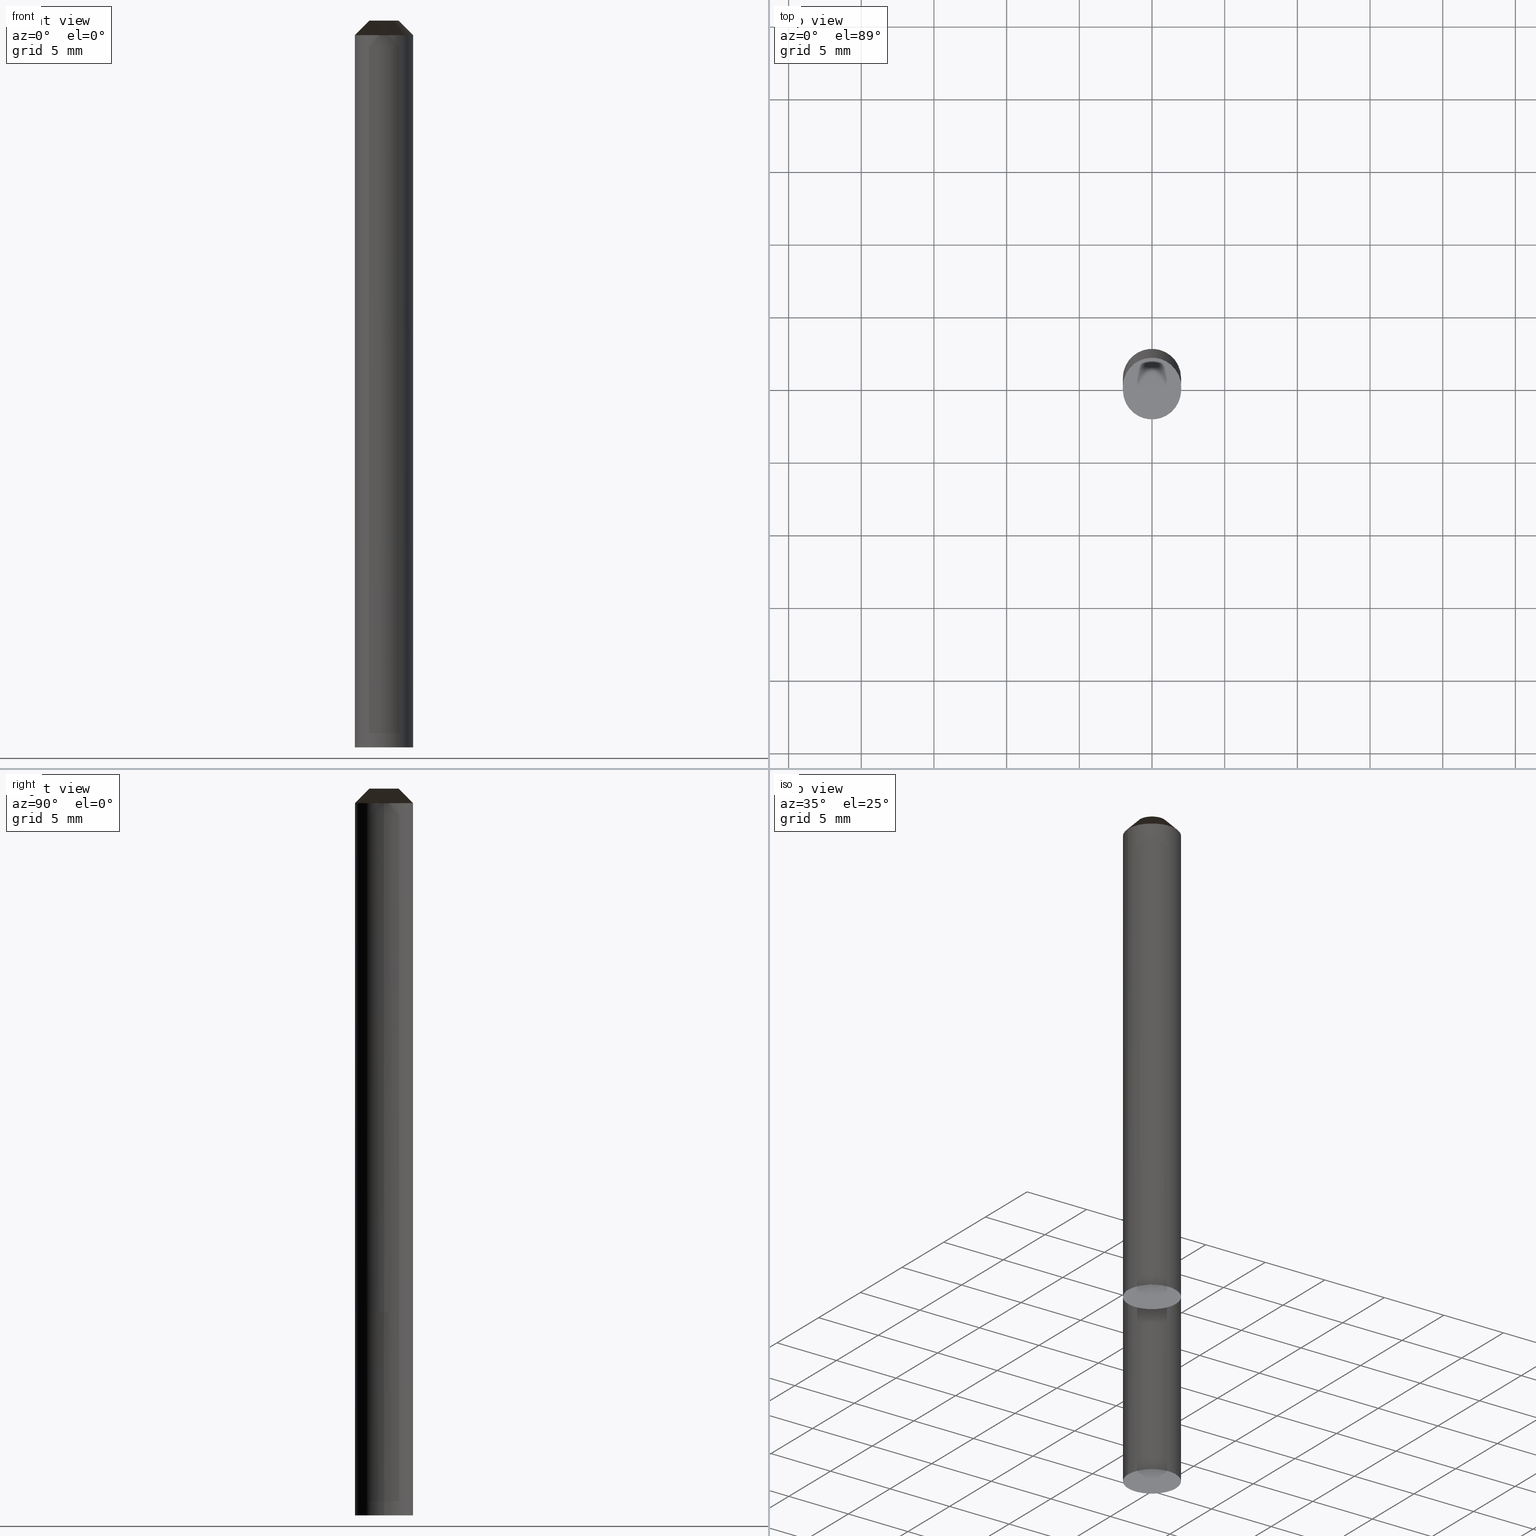
[diagram: canonical four-view strip — front | top / right | iso, engineering-drawing reading convention]
A machine part, canonical four-view strip (front | top / right | iso — engineering-drawing reading convention). The complete STEP part file that produces these views, byte-faithful:
ISO-10303-21;
HEADER;
/* Generated by ISBE GmbH (www.isbe.de) */
/* OPTION: using custom schema-name function */

FILE_DESCRIPTION(
/* description */ (''),
/* implementation_level */ '2;1');

FILE_NAME(
/*name*/ '1110400   Issue 1',
/*time_stamp*/'2021-8-27T14:29:30',
/*author*/ ('ISBE GmbH'),
/*organization*/ ('ISBE GmbH'),
/*preprocessor_version*/ 'STEP IO v1.0',
/*originating_system*/ '',
/*authorisation*/ '');

FILE_SCHEMA (('AUTOMOTIVE_DESIGN'));
ENDSEC;

DATA;
#10=SHAPE_DEFINITION_REPRESENTATION(#11,#57);
#11=PRODUCT_DEFINITION_SHAPE('Document','',#13);
#12=PRODUCT_DEFINITION_CONTEXT('3D Mechanical Parts',#17,'design');
#13=PRODUCT_DEFINITION('A','First version',#14,#12);
#14=PRODUCT_DEFINITION_FORMATION_WITH_SPECIFIED_SOURCE('A','First version',#19,.MADE.);
#15=PRODUCT_RELATED_PRODUCT_CATEGORY('tool','tool',(#19));
#16=APPLICATION_PROTOCOL_DEFINITION('Draft International Standard', 'automotive_design',1999,#17);
#17=APPLICATION_CONTEXT('data for automotive mechanical design processes');
#18=PRODUCT_CONTEXT('3D Mechanical Parts',#17,'mechanical');
#19=PRODUCT('Document','Document','ISBE converted to STEP',(#18));
#20=(
LENGTH_UNIT()
NAMED_UNIT(*)
SI_UNIT(.MILLI.,.METRE.)
);
#21=(
NAMED_UNIT(*)
PLANE_ANGLE_UNIT()
SI_UNIT($,.RADIAN.)
);
#22=DIMENSIONAL_EXPONENTS(0.,0.,0.,0.,0.,0.,0.);
#23=PLANE_ANGLE_MEASURE_WITH_UNIT(PLANE_ANGLE_MEASURE(0.01745329252),#21);
#24=(
CONVERSION_BASED_UNIT('DEGREES',#23)
NAMED_UNIT(#22)
PLANE_ANGLE_UNIT()
);
#25=(
NAMED_UNIT(*)
SI_UNIT($,.STERADIAN.)
SOLID_ANGLE_UNIT()
);
#26=UNCERTAINTY_MEASURE_WITH_UNIT(LENGTH_MEASURE(0.001),#20, 'DISTANCE_ACCURACY_VALUE', 'Maximum model space distance between geometric entities at asserted connectivities');
#27=(
GEOMETRIC_REPRESENTATION_CONTEXT(3)
GLOBAL_UNCERTAINTY_ASSIGNED_CONTEXT((#26))
GLOBAL_UNIT_ASSIGNED_CONTEXT((#25,#24,#20))
REPRESENTATION_CONTEXT('ID1','3D')
);
#28=CARTESIAN_POINT('',(0.0,0.0,0.0));
#29=DIRECTION('',(1.0,0.0,0.0));
#30=DIRECTION('',(0.0,0.0,1.0));
#31=AXIS2_PLACEMENT_3D('',#28,#30,#29);
#32=CARTESIAN_POINT('',(0.0,0.0,0.0));
#33=DIRECTION('',(1.0,0.0,0.0));
#34=DIRECTION('',(0.0,0.0,1.0));
#35=AXIS2_PLACEMENT_3D('',#32,#34,#33);
#36=CARTESIAN_POINT('',(0.0,0.0,0.0));
#37=DIRECTION('',(1.0,0.0,0.0));
#38=DIRECTION('',(0.0,0.0,1.0));
#39=AXIS2_PLACEMENT_3D('',#36,#38,#37);
#40=CARTESIAN_POINT('',(0.0,0.0,0.0));
#41=DIRECTION('',(0.0,0.0,1.0));
#42=DIRECTION('',(1.0,0.0,0.0));
#43=AXIS2_PLACEMENT_3D('MCS',#40,#42,#41);
#44=CARTESIAN_POINT('',(0.0,0.0,36.0));
#45=DIRECTION('',(0.0,0.0,1.0));
#46=DIRECTION('',(1.0,0.0,0.0));
#47=AXIS2_PLACEMENT_3D('PCS',#44,#46,#45);
#48=CARTESIAN_POINT('',(0.0,0.0,-14.0));
#49=DIRECTION('',(0.0,0.0,1.0));
#50=DIRECTION('',(1.0,0.0,0.0));
#51=AXIS2_PLACEMENT_3D('CIP',#48,#50,#49);
#52=CARTESIAN_POINT('',(0.0,-2.0,-14.0));
#53=DIRECTION('',(0.0,0.0,1.0));
#54=DIRECTION('',(1.0,0.0,0.0));
#55=AXIS2_PLACEMENT_3D('CRP',#52,#54,#53);
#57=SHAPE_REPRESENTATION('Document',(#31,#35,#39,#43,#47,#51,#55),#27);
#58=DIRECTION('',(1.0,0.0,0.0));
#59=DIRECTION('',(0.0,0.0,1.0));
#60=CARTESIAN_POINT('',(-0.019998999975,-0.0002,-14.0));
#61=CARTESIAN_POINT('',(-0.0196431949,-0.035778728395,-14.0));
#62=CARTESIAN_POINT('',(-0.019207552564,-0.079340783777,-14.0));
#63=CARTESIAN_POINT('',(-0.018790953924,-0.120998564676,-14.0));
#64=CARTESIAN_POINT('',(-0.018378643219,-0.162227573663,-14.0));
#65=CARTESIAN_POINT('',(-0.017968007292,-0.203289113088,-14.0));
#66=CARTESIAN_POINT('',(-0.017558200712,-0.244267721978,-14.0));
#67=CARTESIAN_POINT('',(-0.017148865714,-0.285199175079,-14.0));
#68=CARTESIAN_POINT('',(-0.016739824608,-0.326101240423,-14.0));
#69=CARTESIAN_POINT('',(-0.016330979072,-0.366983749709,-14.0));
#70=CARTESIAN_POINT('',(-0.015922270267,-0.407852586672,-14.0));
#71=CARTESIAN_POINT('',(-0.015513660814,-0.448711488837,-14.0));
#72=CARTESIAN_POINT('',(-0.015105125828,-0.4895629447,-14.0));
#73=CARTESIAN_POINT('',(-0.014696648096,-0.530408675429,-14.0));
#74=CARTESIAN_POINT('',(-0.014288215333,-0.571249909538,-14.0));
#75=CARTESIAN_POINT('',(-0.013879818534,-0.612087547426,-14.0));
#76=CARTESIAN_POINT('',(-0.013471450949,-0.652922264088,-14.0));
#77=CARTESIAN_POINT('',(-0.013063107417,-0.693754575505,-14.0));
#78=CARTESIAN_POINT('',(-0.012654783926,-0.734584882879,-14.0));
#79=CARTESIAN_POINT('',(-0.012246477311,-0.775413502867,-14.0));
#80=CARTESIAN_POINT('',(-0.011838185037,-0.816240688741,-14.0));
#81=CARTESIAN_POINT('',(-0.011429905055,-0.857066645496,-14.0));
#82=CARTESIAN_POINT('',(-0.011021635687,-0.897891540828,-14.0));
#83=CARTESIAN_POINT('',(-0.01061337555,-0.938715513251,-14.0));
#84=CARTESIAN_POINT('',(-0.010205123487,-0.979538678181,-14.0));
#85=CARTESIAN_POINT('',(-0.009796878531,-1.020361132555,-14.0));
#86=CARTESIAN_POINT('',(-0.00938863986,-1.061182958393,-14.0));
#87=CARTESIAN_POINT('',(-0.008980406776,-1.102004225556,-14.0));
#88=CARTESIAN_POINT('',(-0.00857217868,-1.142824993922,-14.0));
#89=CARTESIAN_POINT('',(-0.008163955057,-1.183645315105,-14.0));
#90=CARTESIAN_POINT('',(-0.007755735458,-1.224465233837,-14.0));
#91=CARTESIAN_POINT('',(-0.007347519494,-1.265284789075,-14.0));
#92=CARTESIAN_POINT('',(-0.006939306825,-1.306104014904,-14.0));
#93=CARTESIAN_POINT('',(-0.00653109715,-1.346922941279,-14.0));
#94=CARTESIAN_POINT('',(-0.006122890206,-1.387741594626,-14.0));
#95=CARTESIAN_POINT('',(-0.005714685758,-1.428559998354,-14.0));
#96=CARTESIAN_POINT('',(-0.005306483598,-1.469378173268,-14.0));
#97=CARTESIAN_POINT('',(-0.004898283541,-1.510196137923,-14.0));
#98=CARTESIAN_POINT('',(-0.004490085421,-1.551013908923,-14.0));
#99=CARTESIAN_POINT('',(-0.004081889088,-1.591831501165,-14.0));
#100=CARTESIAN_POINT('',(-0.003673694409,-1.63264892806,-14.0));
#101=CARTESIAN_POINT('',(-0.003265501262,-1.673466201707,-14.0));
#102=CARTESIAN_POINT('',(-0.002857309539,-1.714283333054,-14.0));
#103=CARTESIAN_POINT('',(-0.002449119139,-1.75510033203,-14.0));
#104=CARTESIAN_POINT('',(-0.002040929972,-1.795917207663,-14.0));
#105=CARTESIAN_POINT('',(-0.001632741957,-1.836733968175,-14.0));
#106=CARTESIAN_POINT('',(-0.001224555019,-1.877550621075,-14.0));
#107=CARTESIAN_POINT('',(-0.000816369087,-1.918367173234,-14.0));
#108=CARTESIAN_POINT('',(-0.0004081841,-1.959183630948,-14.0));
#109=CARTESIAN_POINT('',(0.0,-2.0,-14.0));
#110=CARTESIAN_POINT('',(0.045921553684,-1.999472733224,-13.920454545455));
#111=CARTESIAN_POINT('',(0.091818894459,-1.997891210907,-13.840909090909));
#112=CARTESIAN_POINT('',(0.137667822181,-1.995256266933,-13.761363636364));
#113=CARTESIAN_POINT('',(0.183444162234,-1.99156929062,-13.681818181818));
#114=CARTESIAN_POINT('',(0.229123778276,-1.986832225989,-13.602272727273));
#115=CARTESIAN_POINT('',(0.274682584961,-1.981047570736,-13.522727272727));
#116=CARTESIAN_POINT('',(0.320096560646,-1.974218374918,-13.443181818182));
#117=CARTESIAN_POINT('',(0.365341760049,-1.966348239342,-13.363636363636));
#118=CARTESIAN_POINT('',(0.410394326881,-1.957441313671,-13.284090909091));
#119=CARTESIAN_POINT('',(0.455230506418,-1.947502294229,-13.204545454545));
#120=CARTESIAN_POINT('',(0.499826658035,-1.936536421531,-13.125));
#121=CARTESIAN_POINT('',(0.544159267661,-1.924549477519,-13.045454545455));
#122=CARTESIAN_POINT('',(0.588204960184,-1.911547782509,-12.965909090909));
#123=CARTESIAN_POINT('',(0.631940511775,-1.897538191863,-12.886363636364));
#124=CARTESIAN_POINT('',(0.67534286213,-1.882528092372,-12.806818181818));
#125=CARTESIAN_POINT('',(0.718389126631,-1.866525398364,-12.727272727273));
#126=CARTESIAN_POINT('',(0.761056608413,-1.849538547528,-12.647727272727));
#127=CARTESIAN_POINT('',(0.803322810332,-1.831576496464,-12.568181818182));
#128=CARTESIAN_POINT('',(0.845165446822,-1.812648715967,-12.488636363636));
#129=CARTESIAN_POINT('',(0.886562455653,-1.792765186026,-12.409090909091));
#130=CARTESIAN_POINT('',(0.927492009555,-1.771936390566,-12.329545454545));
#131=CARTESIAN_POINT('',(0.967932527737,-1.750173311918,-12.25));
#132=CARTESIAN_POINT('',(1.007862687255,-1.727487425031,-12.170454545455));
#133=CARTESIAN_POINT('',(1.047261434264,-1.703890691419,-12.090909090909));
#134=CARTESIAN_POINT('',(1.086107995113,-1.679395552856,-12.011363636364));
#135=CARTESIAN_POINT('',(1.124381887301,-1.654014924814,-11.931818181818));
#136=CARTESIAN_POINT('',(1.162062930277,-1.627762189657,-11.852272727273));
#137=CARTESIAN_POINT('',(1.199131256079,-1.600651189577,-11.772727272727));
#138=CARTESIAN_POINT('',(1.235567319809,-1.572696219306,-11.693181818182));
#139=CARTESIAN_POINT('',(1.271351909942,-1.54391201857,-11.613636363636));
#140=CARTESIAN_POINT('',(1.306466158453,-1.514313764323,-11.534090909091));
#141=CARTESIAN_POINT('',(1.340891550765,-1.483917062739,-11.454545454545));
#142=CARTESIAN_POINT('',(1.374609935512,-1.45273794099,-11.375));
#143=CARTESIAN_POINT('',(1.407603534111,-1.42079283879,-11.295454545455));
#144=CARTESIAN_POINT('',(1.439854950133,-1.388098599732,-11.215909090909));
#145=CARTESIAN_POINT('',(1.471347178478,-1.3546724624,-11.136363636364));
#146=CARTESIAN_POINT('',(1.502063614339,-1.320532051287,-11.056818181818));
#147=CARTESIAN_POINT('',(1.531988061962,-1.285695367498,-10.977272727273));
#148=CARTESIAN_POINT('',(1.561104743179,-1.250180779257,-10.897727272727));
#149=CARTESIAN_POINT('',(1.589398305732,-1.214007012227,-10.818181818182));
#150=CARTESIAN_POINT('',(1.616853831364,-1.177193139635,-10.738636363636));
#151=CARTESIAN_POINT('',(1.64345684369,-1.139758572211,-10.659090909091));
#152=CARTESIAN_POINT('',(1.669193315825,-1.10172304796,-10.579545454545));
#153=CARTESIAN_POINT('',(1.694049677782,-1.063106621749,-10.5));
#154=CARTESIAN_POINT('',(1.718012823628,-1.023929654738,-10.420454545455));
#155=CARTESIAN_POINT('',(1.741070118391,-0.984212803639,-10.340909090909));
#156=CARTESIAN_POINT('',(1.763209404726,-0.943977009828,-10.261363636364));
#157=CARTESIAN_POINT('',(1.784419009324,-0.903243488303,-10.181818181818));
#158=CARTESIAN_POINT('',(1.804687749064,-0.862033716497,-10.102272727273));
#159=CARTESIAN_POINT('',(1.824004936914,-0.820369422952,-10.022727272727));
#160=CARTESIAN_POINT('',(1.842360387561,-0.778272575866,-9.943181818182));
#161=CARTESIAN_POINT('',(1.859744422787,-0.735765371509,-9.863636363636));
#162=CARTESIAN_POINT('',(1.876147876568,-0.692870222516,-9.784090909091));
#163=CARTESIAN_POINT('',(1.891562099907,-0.649609746076,-9.704545454545));
#164=CARTESIAN_POINT('',(1.905978965396,-0.606006751999,-9.625));
#165=CARTESIAN_POINT('',(1.919390871502,-0.562084230696,-9.545454545455));
#166=CARTESIAN_POINT('',(1.931790746571,-0.517865341052,-9.465909090909));
#167=CARTESIAN_POINT('',(1.943172052562,-0.47337339822,-9.386363636364));
#168=CARTESIAN_POINT('',(1.95352878849,-0.428631861323,-9.306818181818));
#169=CARTESIAN_POINT('',(1.962855493592,-0.383664321086,-9.227272727273));
#170=CARTESIAN_POINT('',(1.971147250207,-0.3384944874,-9.147727272727));
#171=CARTESIAN_POINT('',(1.978399686367,-0.293146176817,-9.068181818182));
#172=CARTESIAN_POINT('',(1.984608978103,-0.247643299994,-8.988636363636));
#173=CARTESIAN_POINT('',(1.989771851462,-0.202009849087,-8.909090909091));
#174=CARTESIAN_POINT('',(1.993885584233,-0.156269885098,-8.829545454545));
#175=CARTESIAN_POINT('',(1.99694800738,-0.11044752519,-8.75));
#176=CARTESIAN_POINT('',(1.99895750619,-0.064566929973,-8.670454545455));
#177=CARTESIAN_POINT('',(1.999913021121,-0.018652290758,-8.590909090909));
#178=CARTESIAN_POINT('',(1.999814048362,0.02727218319,-8.511363636364));
#179=CARTESIAN_POINT('',(1.998660640097,0.073182277422,-8.431818181818));
#180=CARTESIAN_POINT('',(1.99645340448,0.119053785071,-8.352272727273));
#181=CARTESIAN_POINT('',(1.993193505314,0.164862519614,-8.272727272727));
#182=CARTESIAN_POINT('',(1.988882661435,0.210584327628,-8.193181818182));
#183=CARTESIAN_POINT('',(1.983523145808,0.256195101522,-8.113636363636));
#184=CARTESIAN_POINT('',(1.977117784327,0.301670792252,-8.034090909091));
#185=CARTESIAN_POINT('',(1.969669954327,0.346987421995,-7.954545454545));
#186=CARTESIAN_POINT('',(1.9611835828,0.392121096799,-7.875));
#187=CARTESIAN_POINT('',(1.951663144329,0.437048019177,-7.795454545455));
#188=CARTESIAN_POINT('',(1.941113658725,0.481744500655,-7.715909090909));
#189=CARTESIAN_POINT('',(1.92954068838,0.526186974263,-7.636363636364));
#190=CARTESIAN_POINT('',(1.916950335338,0.570352006962,-7.556818181818));
#191=CARTESIAN_POINT('',(1.903349238074,0.614216311997,-7.477272727273));
#192=CARTESIAN_POINT('',(1.888744567993,0.657756761178,-7.397727272727));
#193=CARTESIAN_POINT('',(1.873144025654,0.700950397072,-7.318181818182));
#194=CARTESIAN_POINT('',(1.856555836704,0.74377444511,-7.238636363636));
#195=CARTESIAN_POINT('',(1.838988747544,0.786206325595,-7.159090909091));
#196=CARTESIAN_POINT('',(1.820452020717,0.828223665605,-7.079545454545));
#197=CARTESIAN_POINT('',(1.800955430022,0.869804310793,-7.0));
#198=CARTESIAN_POINT('',(1.780509255364,0.910926337067,-6.920454545455));
#199=CARTESIAN_POINT('',(1.759124277332,0.951568062149,-6.840909090909));
#200=CARTESIAN_POINT('',(1.736811771514,0.991708057006,-6.761363636364));
#201=CARTESIAN_POINT('',(1.713583502553,1.031325157153,-6.681818181818));
#202=CARTESIAN_POINT('',(1.689451717944,1.07039847381,-6.602272727273));
#203=CARTESIAN_POINT('',(1.664429141575,1.108907404916,-6.522727272727));
#204=CARTESIAN_POINT('',(1.638528967019,1.146831645989,-6.443181818182));
#205=CARTESIAN_POINT('',(1.611764850577,1.184151200837,-6.363636363636));
#206=CARTESIAN_POINT('',(1.584150904079,1.220846392101,-6.284090909091));
#207=CARTESIAN_POINT('',(1.555701687442,1.256897871623,-6.204545454545));
#208=CARTESIAN_POINT('',(1.526432200992,1.292286630657,-6.125));
#209=CARTESIAN_POINT('',(1.496357877557,1.326994009886,-6.045454545455));
#210=CARTESIAN_POINT('',(1.465494574329,1.361001709262,-5.965909090909));
#211=CARTESIAN_POINT('',(1.433858564501,1.394291797655,-5.886363636364));
#212=CARTESIAN_POINT('',(1.401466528691,1.426846722307,-5.806818181818));
#213=CARTESIAN_POINT('',(1.368335546144,1.458649318088,-5.727272727273));
#214=CARTESIAN_POINT('',(1.334483085724,1.489682816547,-5.647727272727));
#215=CARTESIAN_POINT('',(1.299926996711,1.51993085475,-5.568181818182));
#216=CARTESIAN_POINT('',(1.264685499382,1.549377483912,-5.488636363636));
#217=CARTESIAN_POINT('',(1.228777175407,1.578007177803,-5.409090909091));
#218=CARTESIAN_POINT('',(1.192220958052,1.605804840938,-5.329545454545));
#219=CARTESIAN_POINT('',(1.155036122198,1.632755816532,-5.25));
#220=CARTESIAN_POINT('',(1.117242274171,1.658845894231,-5.170454545455));
#221=CARTESIAN_POINT('',(1.078859341412,1.684061317603,-5.090909090909));
#222=CARTESIAN_POINT('',(1.039907561967,1.708388791395,-5.011363636364));
#223=CARTESIAN_POINT('',(1.000407473815,1.731815488537,-4.931818181818));
#224=CARTESIAN_POINT('',(0.960379904039,1.75432905691,-4.852272727273));
#225=CARTESIAN_POINT('',(0.919845957848,1.775917625857,-4.772727272727));
#226=CARTESIAN_POINT('',(0.878827007445,1.796569812444,-4.693181818182));
#227=CARTESIAN_POINT('',(0.837344680759,1.816274727459,-4.613636363636));
#228=CARTESIAN_POINT('',(0.795420850043,1.835021981154,-4.534090909091));
#229=CARTESIAN_POINT('',(0.75307762034,1.852801688725,-4.454545454545));
#230=CARTESIAN_POINT('',(0.710337317828,1.869604475524,-4.375));
#231=CARTESIAN_POINT('',(0.667222478049,1.885421482,-4.295454545455));
#232=CARTESIAN_POINT('',(0.623755834025,1.900244368369,-4.215909090909));
#233=CARTESIAN_POINT('',(0.579960304274,1.914065319018,-4.136363636364));
#234=CARTESIAN_POINT('',(0.535858980723,1.926877046617,-4.056818181818));
#235=CARTESIAN_POINT('',(0.491475116535,1.938672795968,-3.977272727273));
#236=CARTESIAN_POINT('',(0.446832113847,1.949446347565,-3.897727272727));
#237=CARTESIAN_POINT('',(0.401953511431,1.959192020872,-3.818181818182));
#238=CARTESIAN_POINT('',(0.356862972283,1.967904677319,-3.738636363636));
#239=CARTESIAN_POINT('',(0.311584271146,1.975579723011,-3.659090909091));
#240=CARTESIAN_POINT('',(0.266141281976,1.982213111153,-3.579545454545));
#241=CARTESIAN_POINT('',(0.220557965349,1.987801344179,-3.5));
#242=CARTESIAN_POINT('',(0.174858355836,1.9923414756,-3.420454545455));
#243=CARTESIAN_POINT('',(0.12906654932,1.995831111554,-3.340909090909));
#244=CARTESIAN_POINT('',(0.083206690302,1.998268412073,-3.261363636364));
#245=CARTESIAN_POINT('',(0.03730295916,1.999652092049,-3.181818181818));
#246=CARTESIAN_POINT('',(-0.008620440593,1.999981421915,-3.102272727273));
#247=CARTESIAN_POINT('',(-0.054539295074,1.999256228024,-3.022727272727));
#248=CARTESIAN_POINT('',(-0.100429392796,1.997476892748,-2.943181818182));
#249=CARTESIAN_POINT('',(-0.146266537437,1.994644354271,-2.863636363636));
#250=CARTESIAN_POINT('',(-0.192026560591,1.990760106097,-2.784090909091));
#251=CARTESIAN_POINT('',(-0.237685334521,1.98582619626,-2.704545454545));
#252=CARTESIAN_POINT('',(-0.28321878487,1.979845226248,-2.625));
#253=CARTESIAN_POINT('',(-0.328602903364,1.972820349627,-2.545454545455));
#254=CARTESIAN_POINT('',(-0.373813760465,1.96475527038,-2.465909090909));
#255=CARTESIAN_POINT('',(-0.418827517989,1.955654240957,-2.386363636364));
#256=CARTESIAN_POINT('',(-0.463620441678,1.945522060029,-2.306818181818));
#257=CARTESIAN_POINT('',(-0.508168913712,1.934364069956,-2.227272727273));
#258=CARTESIAN_POINT('',(-0.552449445162,1.922186153977,-2.147727272727));
#259=CARTESIAN_POINT('',(-0.596438688373,1.908994733102,-2.068181818182));
#260=CARTESIAN_POINT('',(-0.64011344928,1.89479676273,-1.988636363636));
#261=CARTESIAN_POINT('',(-0.683450699633,1.879599728977,-1.909090909091));
#262=CARTESIAN_POINT('',(-0.726427589139,1.863411644736,-1.829545454545));
#263=CARTESIAN_POINT('',(-0.769021457513,1.846241045445,-1.75));
#264=CARTESIAN_POINT('',(-0.811209846421,1.828096984591,-1.670454545455));
#265=CARTESIAN_POINT('',(-0.85297051133,1.808989028933,-1.590909090909));
#266=CARTESIAN_POINT('',(-0.894281433228,1.788927253464,-1.511363636364));
#267=CARTESIAN_POINT('',(-0.935120830237,1.767922236089,-1.431818181818));
#268=CARTESIAN_POINT('',(-0.975467169101,1.745985052057,-1.352272727273));
#269=CARTESIAN_POINT('',(-1.015299176537,1.723127268116,-1.272727272727));
#270=CARTESIAN_POINT('',(-1.054595850449,1.699360936416,-1.193181818182));
#271=CARTESIAN_POINT('',(-1.093336471007,1.674698588154,-1.113636363636));
#272=CARTESIAN_POINT('',(-1.131500611569,1.649153226968,-1.034090909091));
#273=CARTESIAN_POINT('',(-1.169068149452,1.622738322077,-0.954545454545));
#274=CARTESIAN_POINT('',(-1.206019276542,1.595467801182,-0.875));
#275=CARTESIAN_POINT('',(-1.242334509736,1.567356043125,-0.795454545455));
#276=CARTESIAN_POINT('',(-1.277994701218,1.5384178703,-0.715909090909));
#277=CARTESIAN_POINT('',(-1.312981048555,1.508668540845,-0.636363636364));
#278=CARTESIAN_POINT('',(-1.347275104608,1.478123740592,-0.556818181818));
#279=CARTESIAN_POINT('',(-1.380858787261,1.446799574801,-0.477272727273));
#280=CARTESIAN_POINT('',(-1.413714388953,1.414712559663,-0.397727272727));
#281=CARTESIAN_POINT('',(-1.445824586017,1.381879613595,-0.318181818182));
#282=CARTESIAN_POINT('',(-1.477172447813,1.348318048319,-0.238636363636));
#283=CARTESIAN_POINT('',(-1.507741445656,1.314045559732,-0.159090909091));
#284=CARTESIAN_POINT('',(-1.537515461528,1.27908021858,-0.079545454545));
#285=CARTESIAN_POINT('',(-1.56647879658,1.243440460925,0.0));
#286=CARTESIAN_POINT('',(0.019998999975,0.0002,-14.0));
#287=CARTESIAN_POINT('',(0.0196431949,0.035778728395,-14.0));
#288=CARTESIAN_POINT('',(0.019207552564,0.079340783777,-14.0));
#289=CARTESIAN_POINT('',(0.018790953924,0.120998564676,-14.0));
#290=CARTESIAN_POINT('',(0.018378643219,0.162227573663,-14.0));
#291=CARTESIAN_POINT('',(0.017968007292,0.203289113088,-14.0));
#292=CARTESIAN_POINT('',(0.017558200712,0.244267721978,-14.0));
#293=CARTESIAN_POINT('',(0.017148865714,0.285199175079,-14.0));
#294=CARTESIAN_POINT('',(0.016739824608,0.326101240423,-14.0));
#295=CARTESIAN_POINT('',(0.016330979072,0.366983749709,-14.0));
#296=CARTESIAN_POINT('',(0.015922270267,0.407852586672,-14.0));
#297=CARTESIAN_POINT('',(0.015513660814,0.448711488837,-14.0));
#298=CARTESIAN_POINT('',(0.015105125828,0.4895629447,-14.0));
#299=CARTESIAN_POINT('',(0.014696648096,0.530408675429,-14.0));
#300=CARTESIAN_POINT('',(0.014288215333,0.571249909538,-14.0));
#301=CARTESIAN_POINT('',(0.013879818534,0.612087547426,-14.0));
#302=CARTESIAN_POINT('',(0.013471450949,0.652922264088,-14.0));
#303=CARTESIAN_POINT('',(0.013063107417,0.693754575505,-14.0));
#304=CARTESIAN_POINT('',(0.012654783926,0.734584882879,-14.0));
#305=CARTESIAN_POINT('',(0.012246477311,0.775413502867,-14.0));
#306=CARTESIAN_POINT('',(0.011838185037,0.816240688741,-14.0));
#307=CARTESIAN_POINT('',(0.011429905055,0.857066645496,-14.0));
#308=CARTESIAN_POINT('',(0.011021635687,0.897891540828,-14.0));
#309=CARTESIAN_POINT('',(0.01061337555,0.938715513251,-14.0));
#310=CARTESIAN_POINT('',(0.010205123487,0.979538678181,-14.0));
#311=CARTESIAN_POINT('',(0.009796878531,1.020361132555,-14.0));
#312=CARTESIAN_POINT('',(0.00938863986,1.061182958393,-14.0));
#313=CARTESIAN_POINT('',(0.008980406776,1.102004225556,-14.0));
#314=CARTESIAN_POINT('',(0.00857217868,1.142824993922,-14.0));
#315=CARTESIAN_POINT('',(0.008163955057,1.183645315105,-14.0));
#316=CARTESIAN_POINT('',(0.007755735458,1.224465233837,-14.0));
#317=CARTESIAN_POINT('',(0.007347519494,1.265284789075,-14.0));
#318=CARTESIAN_POINT('',(0.006939306825,1.306104014904,-14.0));
#319=CARTESIAN_POINT('',(0.00653109715,1.346922941279,-14.0));
#320=CARTESIAN_POINT('',(0.006122890206,1.387741594626,-14.0));
#321=CARTESIAN_POINT('',(0.005714685758,1.428559998354,-14.0));
#322=CARTESIAN_POINT('',(0.005306483598,1.469378173268,-14.0));
#323=CARTESIAN_POINT('',(0.004898283541,1.510196137923,-14.0));
#324=CARTESIAN_POINT('',(0.004490085421,1.551013908923,-14.0));
#325=CARTESIAN_POINT('',(0.004081889088,1.591831501165,-14.0));
#326=CARTESIAN_POINT('',(0.003673694409,1.63264892806,-14.0));
#327=CARTESIAN_POINT('',(0.003265501262,1.673466201707,-14.0));
#328=CARTESIAN_POINT('',(0.002857309539,1.714283333054,-14.0));
#329=CARTESIAN_POINT('',(0.002449119139,1.75510033203,-14.0));
#330=CARTESIAN_POINT('',(0.002040929972,1.795917207663,-14.0));
#331=CARTESIAN_POINT('',(0.001632741957,1.836733968175,-14.0));
#332=CARTESIAN_POINT('',(0.001224555019,1.877550621075,-14.0));
#333=CARTESIAN_POINT('',(0.000816369087,1.918367173234,-14.0));
#334=CARTESIAN_POINT('',(0.0004081841,1.959183630948,-14.0));
#335=CARTESIAN_POINT('',(0.0,2.0,-14.0));
#336=CARTESIAN_POINT('',(-0.045921553684,1.999472733224,-13.920454545455));
#337=CARTESIAN_POINT('',(-0.091818894459,1.997891210907,-13.840909090909));
#338=CARTESIAN_POINT('',(-0.137667822181,1.995256266933,-13.761363636364));
#339=CARTESIAN_POINT('',(-0.183444162234,1.99156929062,-13.681818181818));
#340=CARTESIAN_POINT('',(-0.229123778276,1.986832225989,-13.602272727273));
#341=CARTESIAN_POINT('',(-0.274682584961,1.981047570736,-13.522727272727));
#342=CARTESIAN_POINT('',(-0.320096560646,1.974218374918,-13.443181818182));
#343=CARTESIAN_POINT('',(-0.365341760049,1.966348239342,-13.363636363636));
#344=CARTESIAN_POINT('',(-0.41039432688,1.957441313671,-13.284090909091));
#345=CARTESIAN_POINT('',(-0.455230506418,1.947502294229,-13.204545454545));
#346=CARTESIAN_POINT('',(-0.499826658035,1.936536421531,-13.125));
#347=CARTESIAN_POINT('',(-0.544159267661,1.924549477519,-13.045454545455));
#348=CARTESIAN_POINT('',(-0.588204960184,1.911547782509,-12.965909090909));
#349=CARTESIAN_POINT('',(-0.631940511775,1.897538191863,-12.886363636364));
#350=CARTESIAN_POINT('',(-0.67534286213,1.882528092372,-12.806818181818));
#351=CARTESIAN_POINT('',(-0.718389126631,1.866525398364,-12.727272727273));
#352=CARTESIAN_POINT('',(-0.761056608413,1.849538547528,-12.647727272727));
#353=CARTESIAN_POINT('',(-0.803322810332,1.831576496464,-12.568181818182));
#354=CARTESIAN_POINT('',(-0.845165446822,1.812648715967,-12.488636363636));
#355=CARTESIAN_POINT('',(-0.886562455653,1.792765186026,-12.409090909091));
#356=CARTESIAN_POINT('',(-0.927492009555,1.771936390566,-12.329545454545));
#357=CARTESIAN_POINT('',(-0.967932527737,1.750173311918,-12.25));
#358=CARTESIAN_POINT('',(-1.007862687255,1.727487425031,-12.170454545455));
#359=CARTESIAN_POINT('',(-1.047261434264,1.703890691419,-12.090909090909));
#360=CARTESIAN_POINT('',(-1.086107995113,1.679395552856,-12.011363636364));
#361=CARTESIAN_POINT('',(-1.124381887301,1.654014924814,-11.931818181818));
#362=CARTESIAN_POINT('',(-1.162062930277,1.627762189657,-11.852272727273));
#363=CARTESIAN_POINT('',(-1.199131256079,1.600651189577,-11.772727272727));
#364=CARTESIAN_POINT('',(-1.235567319809,1.572696219306,-11.693181818182));
#365=CARTESIAN_POINT('',(-1.271351909942,1.54391201857,-11.613636363636));
#366=CARTESIAN_POINT('',(-1.306466158453,1.514313764323,-11.534090909091));
#367=CARTESIAN_POINT('',(-1.340891550765,1.483917062739,-11.454545454545));
#368=CARTESIAN_POINT('',(-1.374609935512,1.45273794099,-11.375));
#369=CARTESIAN_POINT('',(-1.407603534111,1.42079283879,-11.295454545455));
#370=CARTESIAN_POINT('',(-1.439854950133,1.388098599732,-11.215909090909));
#371=CARTESIAN_POINT('',(-1.471347178478,1.3546724624,-11.136363636364));
#372=CARTESIAN_POINT('',(-1.502063614339,1.320532051288,-11.056818181818));
#373=CARTESIAN_POINT('',(-1.531988061962,1.285695367498,-10.977272727273));
#374=CARTESIAN_POINT('',(-1.561104743179,1.250180779257,-10.897727272727));
#375=CARTESIAN_POINT('',(-1.589398305732,1.214007012227,-10.818181818182));
#376=CARTESIAN_POINT('',(-1.616853831364,1.177193139635,-10.738636363636));
#377=CARTESIAN_POINT('',(-1.64345684369,1.139758572211,-10.659090909091));
#378=CARTESIAN_POINT('',(-1.669193315825,1.10172304796,-10.579545454545));
#379=CARTESIAN_POINT('',(-1.694049677782,1.063106621749,-10.5));
#380=CARTESIAN_POINT('',(-1.718012823628,1.023929654738,-10.420454545455));
#381=CARTESIAN_POINT('',(-1.741070118391,0.984212803639,-10.340909090909));
#382=CARTESIAN_POINT('',(-1.763209404726,0.943977009828,-10.261363636364));
#383=CARTESIAN_POINT('',(-1.784419009324,0.903243488303,-10.181818181818));
#384=CARTESIAN_POINT('',(-1.804687749064,0.862033716497,-10.102272727273));
#385=CARTESIAN_POINT('',(-1.824004936914,0.820369422952,-10.022727272727));
#386=CARTESIAN_POINT('',(-1.842360387561,0.778272575866,-9.943181818182));
#387=CARTESIAN_POINT('',(-1.859744422787,0.735765371509,-9.863636363636));
#388=CARTESIAN_POINT('',(-1.876147876568,0.692870222516,-9.784090909091));
#389=CARTESIAN_POINT('',(-1.891562099907,0.649609746076,-9.704545454545));
#390=CARTESIAN_POINT('',(-1.905978965396,0.606006751999,-9.625));
#391=CARTESIAN_POINT('',(-1.919390871502,0.562084230696,-9.545454545455));
#392=CARTESIAN_POINT('',(-1.931790746571,0.517865341052,-9.465909090909));
#393=CARTESIAN_POINT('',(-1.943172052562,0.47337339822,-9.386363636364));
#394=CARTESIAN_POINT('',(-1.95352878849,0.428631861323,-9.306818181818));
#395=CARTESIAN_POINT('',(-1.962855493592,0.383664321086,-9.227272727273));
#396=CARTESIAN_POINT('',(-1.971147250207,0.3384944874,-9.147727272727));
#397=CARTESIAN_POINT('',(-1.978399686367,0.293146176817,-9.068181818182));
#398=CARTESIAN_POINT('',(-1.984608978103,0.247643299994,-8.988636363636));
#399=CARTESIAN_POINT('',(-1.989771851462,0.202009849087,-8.909090909091));
#400=CARTESIAN_POINT('',(-1.993885584233,0.156269885098,-8.829545454545));
#401=CARTESIAN_POINT('',(-1.99694800738,0.11044752519,-8.75));
#402=CARTESIAN_POINT('',(-1.99895750619,0.064566929973,-8.670454545455));
#403=CARTESIAN_POINT('',(-1.999913021121,0.018652290758,-8.590909090909));
#404=CARTESIAN_POINT('',(-1.999814048362,-0.02727218319,-8.511363636364));
#405=CARTESIAN_POINT('',(-1.998660640097,-0.073182277422,-8.431818181818));
#406=CARTESIAN_POINT('',(-1.99645340448,-0.119053785071,-8.352272727273));
#407=CARTESIAN_POINT('',(-1.993193505314,-0.164862519614,-8.272727272727));
#408=CARTESIAN_POINT('',(-1.988882661435,-0.210584327628,-8.193181818182));
#409=CARTESIAN_POINT('',(-1.983523145808,-0.256195101522,-8.113636363636));
#410=CARTESIAN_POINT('',(-1.977117784327,-0.301670792252,-8.034090909091));
#411=CARTESIAN_POINT('',(-1.969669954327,-0.346987421995,-7.954545454545));
#412=CARTESIAN_POINT('',(-1.9611835828,-0.392121096799,-7.875));
#413=CARTESIAN_POINT('',(-1.951663144329,-0.437048019177,-7.795454545455));
#414=CARTESIAN_POINT('',(-1.941113658725,-0.481744500655,-7.715909090909));
#415=CARTESIAN_POINT('',(-1.92954068838,-0.526186974263,-7.636363636364));
#416=CARTESIAN_POINT('',(-1.916950335338,-0.570352006962,-7.556818181818));
#417=CARTESIAN_POINT('',(-1.903349238074,-0.614216311997,-7.477272727273));
#418=CARTESIAN_POINT('',(-1.888744567993,-0.657756761178,-7.397727272727));
#419=CARTESIAN_POINT('',(-1.873144025654,-0.700950397072,-7.318181818182));
#420=CARTESIAN_POINT('',(-1.856555836704,-0.74377444511,-7.238636363636));
#421=CARTESIAN_POINT('',(-1.838988747544,-0.786206325595,-7.159090909091));
#422=CARTESIAN_POINT('',(-1.820452020717,-0.828223665605,-7.079545454545));
#423=CARTESIAN_POINT('',(-1.800955430022,-0.869804310793,-7.0));
#424=CARTESIAN_POINT('',(-1.780509255364,-0.910926337067,-6.920454545455));
#425=CARTESIAN_POINT('',(-1.759124277332,-0.951568062149,-6.840909090909));
#426=CARTESIAN_POINT('',(-1.736811771514,-0.991708057006,-6.761363636364));
#427=CARTESIAN_POINT('',(-1.713583502553,-1.031325157153,-6.681818181818));
#428=CARTESIAN_POINT('',(-1.689451717944,-1.07039847381,-6.602272727273));
#429=CARTESIAN_POINT('',(-1.664429141575,-1.108907404916,-6.522727272727));
#430=CARTESIAN_POINT('',(-1.638528967019,-1.146831645989,-6.443181818182));
#431=CARTESIAN_POINT('',(-1.611764850577,-1.184151200837,-6.363636363636));
#432=CARTESIAN_POINT('',(-1.584150904079,-1.220846392101,-6.284090909091));
#433=CARTESIAN_POINT('',(-1.555701687442,-1.256897871623,-6.204545454545));
#434=CARTESIAN_POINT('',(-1.526432200992,-1.292286630657,-6.125));
#435=CARTESIAN_POINT('',(-1.496357877557,-1.326994009886,-6.045454545455));
#436=CARTESIAN_POINT('',(-1.465494574329,-1.361001709262,-5.965909090909));
#437=CARTESIAN_POINT('',(-1.433858564501,-1.394291797655,-5.886363636364));
#438=CARTESIAN_POINT('',(-1.401466528691,-1.426846722307,-5.806818181818));
#439=CARTESIAN_POINT('',(-1.368335546144,-1.458649318088,-5.727272727273));
#440=CARTESIAN_POINT('',(-1.334483085724,-1.489682816547,-5.647727272727));
#441=CARTESIAN_POINT('',(-1.299926996711,-1.51993085475,-5.568181818182));
#442=CARTESIAN_POINT('',(-1.264685499382,-1.549377483912,-5.488636363636));
#443=CARTESIAN_POINT('',(-1.228777175407,-1.578007177803,-5.409090909091));
#444=CARTESIAN_POINT('',(-1.192220958052,-1.605804840938,-5.329545454545));
#445=CARTESIAN_POINT('',(-1.155036122198,-1.632755816532,-5.25));
#446=CARTESIAN_POINT('',(-1.117242274171,-1.658845894231,-5.170454545455));
#447=CARTESIAN_POINT('',(-1.078859341412,-1.684061317603,-5.090909090909));
#448=CARTESIAN_POINT('',(-1.039907561967,-1.708388791395,-5.011363636364));
#449=CARTESIAN_POINT('',(-1.000407473815,-1.731815488537,-4.931818181818));
#450=CARTESIAN_POINT('',(-0.960379904039,-1.75432905691,-4.852272727273));
#451=CARTESIAN_POINT('',(-0.919845957848,-1.775917625857,-4.772727272727));
#452=CARTESIAN_POINT('',(-0.878827007445,-1.796569812444,-4.693181818182));
#453=CARTESIAN_POINT('',(-0.837344680759,-1.816274727459,-4.613636363636));
#454=CARTESIAN_POINT('',(-0.795420850043,-1.835021981154,-4.534090909091));
#455=CARTESIAN_POINT('',(-0.75307762034,-1.852801688725,-4.454545454545));
#456=CARTESIAN_POINT('',(-0.710337317828,-1.869604475524,-4.375));
#457=CARTESIAN_POINT('',(-0.667222478049,-1.885421482,-4.295454545455));
#458=CARTESIAN_POINT('',(-0.623755834025,-1.900244368369,-4.215909090909));
#459=CARTESIAN_POINT('',(-0.579960304274,-1.914065319018,-4.136363636364));
#460=CARTESIAN_POINT('',(-0.535858980723,-1.926877046617,-4.056818181818));
#461=CARTESIAN_POINT('',(-0.491475116535,-1.938672795968,-3.977272727273));
#462=CARTESIAN_POINT('',(-0.446832113847,-1.949446347565,-3.897727272727));
#463=CARTESIAN_POINT('',(-0.401953511431,-1.959192020872,-3.818181818182));
#464=CARTESIAN_POINT('',(-0.356862972283,-1.967904677319,-3.738636363636));
#465=CARTESIAN_POINT('',(-0.311584271146,-1.975579723011,-3.659090909091));
#466=CARTESIAN_POINT('',(-0.266141281976,-1.982213111153,-3.579545454545));
#467=CARTESIAN_POINT('',(-0.220557965349,-1.987801344179,-3.5));
#468=CARTESIAN_POINT('',(-0.174858355836,-1.9923414756,-3.420454545455));
#469=CARTESIAN_POINT('',(-0.12906654932,-1.995831111554,-3.340909090909));
#470=CARTESIAN_POINT('',(-0.083206690302,-1.998268412073,-3.261363636364));
#471=CARTESIAN_POINT('',(-0.03730295916,-1.999652092049,-3.181818181818));
#472=CARTESIAN_POINT('',(0.008620440593,-1.999981421915,-3.102272727273));
#473=CARTESIAN_POINT('',(0.054539295074,-1.999256228024,-3.022727272727));
#474=CARTESIAN_POINT('',(0.100429392796,-1.997476892748,-2.943181818182));
#475=CARTESIAN_POINT('',(0.146266537437,-1.994644354271,-2.863636363636));
#476=CARTESIAN_POINT('',(0.192026560591,-1.990760106097,-2.784090909091));
#477=CARTESIAN_POINT('',(0.237685334521,-1.98582619626,-2.704545454545));
#478=CARTESIAN_POINT('',(0.28321878487,-1.979845226248,-2.625));
#479=CARTESIAN_POINT('',(0.328602903364,-1.972820349627,-2.545454545455));
#480=CARTESIAN_POINT('',(0.373813760465,-1.96475527038,-2.465909090909));
#481=CARTESIAN_POINT('',(0.418827517989,-1.955654240957,-2.386363636364));
#482=CARTESIAN_POINT('',(0.463620441678,-1.945522060029,-2.306818181818));
#483=CARTESIAN_POINT('',(0.508168913712,-1.934364069956,-2.227272727273));
#484=CARTESIAN_POINT('',(0.552449445162,-1.922186153977,-2.147727272727));
#485=CARTESIAN_POINT('',(0.596438688373,-1.908994733102,-2.068181818182));
#486=CARTESIAN_POINT('',(0.64011344928,-1.89479676273,-1.988636363636));
#487=CARTESIAN_POINT('',(0.683450699633,-1.879599728977,-1.909090909091));
#488=CARTESIAN_POINT('',(0.726427589139,-1.863411644736,-1.829545454545));
#489=CARTESIAN_POINT('',(0.769021457513,-1.846241045445,-1.75));
#490=CARTESIAN_POINT('',(0.811209846421,-1.828096984591,-1.670454545455));
#491=CARTESIAN_POINT('',(0.85297051133,-1.808989028933,-1.590909090909));
#492=CARTESIAN_POINT('',(0.894281433228,-1.788927253464,-1.511363636364));
#493=CARTESIAN_POINT('',(0.935120830237,-1.767922236089,-1.431818181818));
#494=CARTESIAN_POINT('',(0.975467169101,-1.745985052057,-1.352272727273));
#495=CARTESIAN_POINT('',(1.015299176537,-1.723127268116,-1.272727272727));
#496=CARTESIAN_POINT('',(1.054595850449,-1.699360936416,-1.193181818182));
#497=CARTESIAN_POINT('',(1.093336471007,-1.674698588154,-1.113636363636));
#498=CARTESIAN_POINT('',(1.131500611569,-1.649153226968,-1.034090909091));
#499=CARTESIAN_POINT('',(1.169068149452,-1.622738322077,-0.954545454545));
#500=CARTESIAN_POINT('',(1.206019276542,-1.595467801182,-0.875));
#501=CARTESIAN_POINT('',(1.242334509736,-1.567356043125,-0.795454545455));
#502=CARTESIAN_POINT('',(1.277994701218,-1.5384178703,-0.715909090909));
#503=CARTESIAN_POINT('',(1.312981048555,-1.508668540845,-0.636363636364));
#504=CARTESIAN_POINT('',(1.347275104608,-1.478123740592,-0.556818181818));
#505=CARTESIAN_POINT('',(1.380858787261,-1.446799574801,-0.477272727273));
#506=CARTESIAN_POINT('',(1.413714388953,-1.414712559663,-0.397727272727));
#507=CARTESIAN_POINT('',(1.445824586017,-1.381879613595,-0.318181818182));
#508=CARTESIAN_POINT('',(1.477172447813,-1.348318048319,-0.238636363636));
#509=CARTESIAN_POINT('',(1.507741445656,-1.314045559732,-0.159090909091));
#510=CARTESIAN_POINT('',(1.537515461528,-1.27908021858,-0.079545454545));
#511=CARTESIAN_POINT('',(1.56647879658,-1.243440460925,0.0));
#512=CARTESIAN_POINT('',(0.0,0.0,-14.0));
#513=CARTESIAN_POINT('',(2.0,0.0,-14.0));
#514=CARTESIAN_POINT('',(2.0,2.0,-14.0));
#515=CARTESIAN_POINT('',(-2.0,2.0,-14.0));
#516=CARTESIAN_POINT('',(-2.0,0.0,-14.0));
#517=CARTESIAN_POINT('',(2.0,0.0,0.0));
#518=CARTESIAN_POINT('',(2.0,2.0,0.0));
#519=CARTESIAN_POINT('',(0.0,2.0,0.0));
#520=CARTESIAN_POINT('',(-2.0,2.0,0.0));
#521=CARTESIAN_POINT('',(-2.0,0.0,0.0));
#522=CARTESIAN_POINT('',(0.0,0.0,0.0));
#523=CARTESIAN_POINT('',(-2.0,-2.0,-14.0));
#524=CARTESIAN_POINT('',(2.0,-2.0,-14.0));
#525=CARTESIAN_POINT('',(-2.0,-2.0,0.0));
#526=CARTESIAN_POINT('',(0.0,-2.0,0.0));
#527=CARTESIAN_POINT('',(2.0,-2.0,0.0));
#528=CARTESIAN_POINT('',(2.0,0.0,35.0));
#529=CARTESIAN_POINT('',(2.0,2.0,35.0));
#530=CARTESIAN_POINT('',(0.0,2.0,35.0));
#531=CARTESIAN_POINT('',(-2.0,2.0,35.0));
#532=CARTESIAN_POINT('',(-2.0,0.0,35.0));
#533=CARTESIAN_POINT('',(1.0,0.0,36.0));
#534=CARTESIAN_POINT('',(1.0,1.0,36.0));
#535=CARTESIAN_POINT('',(0.0,1.0,36.0));
#536=CARTESIAN_POINT('',(-1.0,1.0,36.0));
#537=CARTESIAN_POINT('',(-1.0,0.0,36.0));
#538=CARTESIAN_POINT('',(0.0,0.0,36.0));
#539=CARTESIAN_POINT('',(-2.0,-2.0,35.0));
#540=CARTESIAN_POINT('',(0.0,-2.0,35.0));
#541=CARTESIAN_POINT('',(2.0,-2.0,35.0));
#542=CARTESIAN_POINT('',(-1.0,-1.0,36.0));
#543=CARTESIAN_POINT('',(0.0,-1.0,36.0));
#544=CARTESIAN_POINT('',(1.0,-1.0,36.0));
#545=(
BOUNDED_CURVE()
B_SPLINE_CURVE(1,(#60,#61,#62,#63,#64,#65,#66,#67,#68,#69,#70,#71,#72,#73,#74,#75,#76,#77,#78,#79,#80,#81,#82,#83,#84,#85,#86,#87,#88,#89,#90,#91,#92,#93,#94,#95,#96,#97,#98,#99,#100,#101,#102,#103,#104,#105,#106,#107,#108,#109,#110,#111,#112,#113,#114,#115,#116,#117,#118,#119,#120,#121,#122,#123,#124,#125,#126,#127,#128,#129,#130,#131,#132,#133,#134,#135,#136,#137,#138,#139,#140,#141,#142,#143,#144,#145,#146,#147,#148,#149,#150,#151,#152,#153,#154,#155,#156,#157,#158,#159,#160,#161,#162,#163,#164,#165,#166,#167,#168,#169,#170,#171,#172,#173,#174,#175,#176,#177,#178,#179,#180,#181,#182,#183,#184,#185,#186,#187,#188,#189,#190,#191,#192,#193,#194,#195,#196,#197,#198,#199,#200,#201,#202,#203,#204,#205,#206,#207,#208,#209,#210,#211,#212,#213,#214,#215,#216,#217,#218,#219,#220,#221,#222,#223,#224,#225,#226,#227,#228,#229,#230,#231,#232,#233,#234,#235,#236,#237,#238,#239,#240,#241,#242,#243,#244,#245,#246,#247,#248,#249,#250,#251,#252,#253,#254,#255,#256,#257,#258,#259,#260,#261,#262,#263,#264,#265,#266,#267,#268,#269,#270,#271,#272,#273,#274,#275,#276,#277,#278,#279,#280,#281,#282,#283,#284,#285),.UNSPECIFIED.,.F.,.F.)
B_SPLINE_CURVE_WITH_KNOTS((2,1,1,1,1,1,1,1,1,1,1,1,1,1,1,1,1,1,1,1,1,1,1,1,1,1,1,1,1,1,1,1,1,1,1,1,1,1,1,1,1,1,1,1,1,1,1,1,1,1,1,1,1,1,1,1,1,1,1,1,1,1,1,1,1,1,1,1,1,1,1,1,1,1,1,1,1,1,1,1,1,1,1,1,1,1,1,1,1,1,1,1,1,1,1,1,1,1,1,1,1,1,1,1,1,1,1,1,1,1,1,1,1,1,1,1,1,1,1,1,1,1,1,1,1,1,1,1,1,1,1,1,1,1,1,1,1,1,1,1,1,1,1,1,1,1,1,1,1,1,1,1,1,1,1,1,1,1,1,1,1,1,1,1,1,1,1,1,1,1,1,1,1,1,1,1,1,1,1,1,1,1,1,1,1,1,1,1,1,1,1,1,1,1,1,1,1,1,1,1,1,1,1,1,1,1,1,1,1,1,1,1,1,1,1,1,1,1,1,1,1,1,1,1,1,2),
(0.0,0.001958673028,0.004356842573,0.006650178382,0.008919909524,0.011180421167,0.013436367333,0.015689717489,0.017941449796,0.020192105507,0.022442008532,0.024691364628,0.026940310792,0.029188941777,0.031437325215,0.033685510674,0.035933535315,0.038181427543,0.040429209444,0.042676898452,0.04492450851,0.047172050902,0.049419534861,0.051666968012,0.053914356709,0.056161706289,0.058409021266,0.060656305488,0.06290356225,0.065150794394,0.067398004382,0.069645194359,0.071892366201,0.074139521559,0.076386661885,0.078633788469,0.080880902457,0.08312800487,0.085375096621,0.087622178532,0.08986925134,0.092116315711,0.094363372249,0.096610421499,0.098857463959,0.101104500082,0.10335153028,0.105598554932,0.107845574385,0.110092588957,0.115148881065,0.120205173173,0.125261465281,0.130317757389,0.135374049498,0.140430341606,0.145486633714,0.150542925822,0.15559921793,0.160655510039,0.165711802147,0.170768094255,0.175824386363,0.180880678471,0.18593697058,0.190993262688,0.196049554796,0.201105846904,0.206162139012,0.211218431121,0.216274723229,0.221331015337,0.226387307445,0.231443599553,0.236499891662,0.24155618377,0.246612475878,0.251668767986,0.256725060095,0.261781352203,0.266837644311,0.271893936419,0.276950228527,0.282006520636,0.287062812744,0.292119104852,0.29717539696,0.302231689068,0.307287981177,0.312344273285,0.317400565393,0.322456857501,0.327513149609,0.332569441718,0.337625733826,0.342682025934,0.347738318042,0.35279461015,0.357850902259,0.362907194367,0.367963486475,0.373019778583,0.378076070691,0.3831323628,0.388188654908,0.393244947016,0.398301239124,0.403357531232,0.408413823341,0.413470115449,0.418526407557,0.423582699665,0.428638991773,0.433695283882,0.43875157599,0.443807868098,0.448864160206,0.453920452314,0.458976744423,0.464033036531,0.469089328639,0.474145620747,0.479201912855,0.484258204964,0.489314497072,0.49437078918,0.499427081288,0.504483373396,0.509539665505,0.514595957613,0.519652249721,0.524708541829,0.529764833937,0.534821126046,0.539877418154,0.544933710262,0.54999000237,0.555046294478,0.560102586587,0.565158878695,0.570215170803,0.575271462911,0.580327755019,0.585384047128,0.590440339236,0.595496631344,0.600552923452,0.60560921556,0.610665507669,0.615721799777,0.620778091885,0.625834383993,0.630890676101,0.63594696821,0.641003260318,0.646059552426,0.651115844534,0.656172136642,0.661228428751,0.666284720859,0.671341012967,0.676397305075,0.681453597183,0.686509889292,0.6915661814,0.696622473508,0.701678765616,0.706735057724,0.711791349833,0.716847641941,0.721903934049,0.726960226157,0.732016518265,0.737072810374,0.742129102482,0.74718539459,0.752241686698,0.757297978806,0.762354270915,0.767410563023,0.772466855131,0.777523147239,0.782579439347,0.787635731456,0.792692023564,0.797748315672,0.80280460778,0.807860899888,0.812917191997,0.817973484105,0.823029776213,0.828086068321,0.833142360429,0.838198652538,0.843254944646,0.848311236754,0.853367528862,0.85842382097,0.863480113079,0.868536405187,0.873592697295,0.878648989403,0.883705281511,0.88876157362,0.893817865728,0.898874157836,0.903930449944,0.908986742052,0.914043034161,0.919099326269,0.924155618377,0.929211910485,0.934268202593,0.939324494702,0.94438078681,0.949437078918,0.954493371026,0.959549663134,0.964605955243,0.969662247351,0.974718539459,0.979774831567,0.984831123675,0.989887415784,0.994943707892,1.0),.UNSPECIFIED.)
CURVE()
GEOMETRIC_REPRESENTATION_ITEM()
RATIONAL_B_SPLINE_CURVE((1.0,1.0,1.0,1.0,1.0,1.0,1.0,1.0,1.0,1.0,1.0,1.0,1.0,1.0,1.0,1.0,1.0,1.0,1.0,1.0,1.0,1.0,1.0,1.0,1.0,1.0,1.0,1.0,1.0,1.0,1.0,1.0,1.0,1.0,1.0,1.0,1.0,1.0,1.0,1.0,1.0,1.0,1.0,1.0,1.0,1.0,1.0,1.0,1.0,1.0,1.0,1.0,1.0,1.0,1.0,1.0,1.0,1.0,1.0,1.0,1.0,1.0,1.0,1.0,1.0,1.0,1.0,1.0,1.0,1.0,1.0,1.0,1.0,1.0,1.0,1.0,1.0,1.0,1.0,1.0,1.0,1.0,1.0,1.0,1.0,1.0,1.0,1.0,1.0,1.0,1.0,1.0,1.0,1.0,1.0,1.0,1.0,1.0,1.0,1.0,1.0,1.0,1.0,1.0,1.0,1.0,1.0,1.0,1.0,1.0,1.0,1.0,1.0,1.0,1.0,1.0,1.0,1.0,1.0,1.0,1.0,1.0,1.0,1.0,1.0,1.0,1.0,1.0,1.0,1.0,1.0,1.0,1.0,1.0,1.0,1.0,1.0,1.0,1.0,1.0,1.0,1.0,1.0,1.0,1.0,1.0,1.0,1.0,1.0,1.0,1.0,1.0,1.0,1.0,1.0,1.0,1.0,1.0,1.0,1.0,1.0,1.0,1.0,1.0,1.0,1.0,1.0,1.0,1.0,1.0,1.0,1.0,1.0,1.0,1.0,1.0,1.0,1.0,1.0,1.0,1.0,1.0,1.0,1.0,1.0,1.0,1.0,1.0,1.0,1.0,1.0,1.0,1.0,1.0,1.0,1.0,1.0,1.0,1.0,1.0,1.0,1.0,1.0,1.0,1.0,1.0,1.0,1.0,1.0,1.0,1.0,1.0,1.0,1.0,1.0,1.0,1.0,1.0,1.0,1.0,1.0,1.0,1.0,1.0,1.0,1.0))
REPRESENTATION_ITEM('')
);
#546=(
BOUNDED_CURVE()
B_SPLINE_CURVE(1,(#286,#287,#288,#289,#290,#291,#292,#293,#294,#295,#296,#297,#298,#299,#300,#301,#302,#303,#304,#305,#306,#307,#308,#309,#310,#311,#312,#313,#314,#315,#316,#317,#318,#319,#320,#321,#322,#323,#324,#325,#326,#327,#328,#329,#330,#331,#332,#333,#334,#335,#336,#337,#338,#339,#340,#341,#342,#343,#344,#345,#346,#347,#348,#349,#350,#351,#352,#353,#354,#355,#356,#357,#358,#359,#360,#361,#362,#363,#364,#365,#366,#367,#368,#369,#370,#371,#372,#373,#374,#375,#376,#377,#378,#379,#380,#381,#382,#383,#384,#385,#386,#387,#388,#389,#390,#391,#392,#393,#394,#395,#396,#397,#398,#399,#400,#401,#402,#403,#404,#405,#406,#407,#408,#409,#410,#411,#412,#413,#414,#415,#416,#417,#418,#419,#420,#421,#422,#423,#424,#425,#426,#427,#428,#429,#430,#431,#432,#433,#434,#435,#436,#437,#438,#439,#440,#441,#442,#443,#444,#445,#446,#447,#448,#449,#450,#451,#452,#453,#454,#455,#456,#457,#458,#459,#460,#461,#462,#463,#464,#465,#466,#467,#468,#469,#470,#471,#472,#473,#474,#475,#476,#477,#478,#479,#480,#481,#482,#483,#484,#485,#486,#487,#488,#489,#490,#491,#492,#493,#494,#495,#496,#497,#498,#499,#500,#501,#502,#503,#504,#505,#506,#507,#508,#509,#510,#511),.UNSPECIFIED.,.F.,.F.)
B_SPLINE_CURVE_WITH_KNOTS((2,1,1,1,1,1,1,1,1,1,1,1,1,1,1,1,1,1,1,1,1,1,1,1,1,1,1,1,1,1,1,1,1,1,1,1,1,1,1,1,1,1,1,1,1,1,1,1,1,1,1,1,1,1,1,1,1,1,1,1,1,1,1,1,1,1,1,1,1,1,1,1,1,1,1,1,1,1,1,1,1,1,1,1,1,1,1,1,1,1,1,1,1,1,1,1,1,1,1,1,1,1,1,1,1,1,1,1,1,1,1,1,1,1,1,1,1,1,1,1,1,1,1,1,1,1,1,1,1,1,1,1,1,1,1,1,1,1,1,1,1,1,1,1,1,1,1,1,1,1,1,1,1,1,1,1,1,1,1,1,1,1,1,1,1,1,1,1,1,1,1,1,1,1,1,1,1,1,1,1,1,1,1,1,1,1,1,1,1,1,1,1,1,1,1,1,1,1,1,1,1,1,1,1,1,1,1,1,1,1,1,1,1,1,1,1,1,1,1,1,1,1,1,1,1,2),
(0.0,0.001958673028,0.004356842573,0.006650178382,0.008919909524,0.011180421167,0.013436367333,0.015689717489,0.017941449796,0.020192105507,0.022442008532,0.024691364628,0.026940310792,0.029188941777,0.031437325215,0.033685510674,0.035933535315,0.038181427543,0.040429209444,0.042676898452,0.04492450851,0.047172050902,0.049419534861,0.051666968012,0.053914356709,0.056161706289,0.058409021266,0.060656305488,0.06290356225,0.065150794394,0.067398004382,0.069645194359,0.071892366201,0.074139521559,0.076386661885,0.078633788469,0.080880902457,0.08312800487,0.085375096621,0.087622178532,0.08986925134,0.092116315711,0.094363372249,0.096610421499,0.098857463959,0.101104500082,0.10335153028,0.105598554932,0.107845574385,0.110092588957,0.115148881065,0.120205173173,0.125261465281,0.130317757389,0.135374049498,0.140430341606,0.145486633714,0.150542925822,0.15559921793,0.160655510039,0.165711802147,0.170768094255,0.175824386363,0.180880678471,0.18593697058,0.190993262688,0.196049554796,0.201105846904,0.206162139012,0.211218431121,0.216274723229,0.221331015337,0.226387307445,0.231443599553,0.236499891662,0.24155618377,0.246612475878,0.251668767986,0.256725060095,0.261781352203,0.266837644311,0.271893936419,0.276950228527,0.282006520636,0.287062812744,0.292119104852,0.29717539696,0.302231689068,0.307287981177,0.312344273285,0.317400565393,0.322456857501,0.327513149609,0.332569441718,0.337625733826,0.342682025934,0.347738318042,0.35279461015,0.357850902259,0.362907194367,0.367963486475,0.373019778583,0.378076070691,0.3831323628,0.388188654908,0.393244947016,0.398301239124,0.403357531232,0.408413823341,0.413470115449,0.418526407557,0.423582699665,0.428638991773,0.433695283882,0.43875157599,0.443807868098,0.448864160206,0.453920452314,0.458976744423,0.464033036531,0.469089328639,0.474145620747,0.479201912855,0.484258204964,0.489314497072,0.49437078918,0.499427081288,0.504483373396,0.509539665505,0.514595957613,0.519652249721,0.524708541829,0.529764833937,0.534821126046,0.539877418154,0.544933710262,0.54999000237,0.555046294478,0.560102586587,0.565158878695,0.570215170803,0.575271462911,0.580327755019,0.585384047128,0.590440339236,0.595496631344,0.600552923452,0.60560921556,0.610665507669,0.615721799777,0.620778091885,0.625834383993,0.630890676101,0.63594696821,0.641003260318,0.646059552426,0.651115844534,0.656172136642,0.661228428751,0.666284720859,0.671341012967,0.676397305075,0.681453597183,0.686509889292,0.6915661814,0.696622473508,0.701678765616,0.706735057724,0.711791349833,0.716847641941,0.721903934049,0.726960226157,0.732016518265,0.737072810374,0.742129102482,0.74718539459,0.752241686698,0.757297978806,0.762354270915,0.767410563023,0.772466855131,0.777523147239,0.782579439347,0.787635731456,0.792692023564,0.797748315672,0.80280460778,0.807860899888,0.812917191997,0.817973484105,0.823029776213,0.828086068321,0.833142360429,0.838198652538,0.843254944646,0.848311236754,0.853367528862,0.85842382097,0.863480113079,0.868536405187,0.873592697295,0.878648989403,0.883705281511,0.88876157362,0.893817865728,0.898874157836,0.903930449944,0.908986742052,0.914043034161,0.919099326269,0.924155618377,0.929211910485,0.934268202593,0.939324494702,0.94438078681,0.949437078918,0.954493371026,0.959549663134,0.964605955243,0.969662247351,0.974718539459,0.979774831567,0.984831123675,0.989887415784,0.994943707892,1.0),.UNSPECIFIED.)
CURVE()
GEOMETRIC_REPRESENTATION_ITEM()
RATIONAL_B_SPLINE_CURVE((1.0,1.0,1.0,1.0,1.0,1.0,1.0,1.0,1.0,1.0,1.0,1.0,1.0,1.0,1.0,1.0,1.0,1.0,1.0,1.0,1.0,1.0,1.0,1.0,1.0,1.0,1.0,1.0,1.0,1.0,1.0,1.0,1.0,1.0,1.0,1.0,1.0,1.0,1.0,1.0,1.0,1.0,1.0,1.0,1.0,1.0,1.0,1.0,1.0,1.0,1.0,1.0,1.0,1.0,1.0,1.0,1.0,1.0,1.0,1.0,1.0,1.0,1.0,1.0,1.0,1.0,1.0,1.0,1.0,1.0,1.0,1.0,1.0,1.0,1.0,1.0,1.0,1.0,1.0,1.0,1.0,1.0,1.0,1.0,1.0,1.0,1.0,1.0,1.0,1.0,1.0,1.0,1.0,1.0,1.0,1.0,1.0,1.0,1.0,1.0,1.0,1.0,1.0,1.0,1.0,1.0,1.0,1.0,1.0,1.0,1.0,1.0,1.0,1.0,1.0,1.0,1.0,1.0,1.0,1.0,1.0,1.0,1.0,1.0,1.0,1.0,1.0,1.0,1.0,1.0,1.0,1.0,1.0,1.0,1.0,1.0,1.0,1.0,1.0,1.0,1.0,1.0,1.0,1.0,1.0,1.0,1.0,1.0,1.0,1.0,1.0,1.0,1.0,1.0,1.0,1.0,1.0,1.0,1.0,1.0,1.0,1.0,1.0,1.0,1.0,1.0,1.0,1.0,1.0,1.0,1.0,1.0,1.0,1.0,1.0,1.0,1.0,1.0,1.0,1.0,1.0,1.0,1.0,1.0,1.0,1.0,1.0,1.0,1.0,1.0,1.0,1.0,1.0,1.0,1.0,1.0,1.0,1.0,1.0,1.0,1.0,1.0,1.0,1.0,1.0,1.0,1.0,1.0,1.0,1.0,1.0,1.0,1.0,1.0,1.0,1.0,1.0,1.0,1.0,1.0,1.0,1.0,1.0,1.0,1.0,1.0))
REPRESENTATION_ITEM('')
);
#547=SHAPE_REPRESENTATION_RELATIONSHIP('','',#57,#548);
#548=GEOMETRICALLY_BOUNDED_WIREFRAME_SHAPE_REPRESENTATION('Curves',(#549,#31),#27);
#549=GEOMETRIC_CURVE_SET('CurveSet',(#545,#546));
#550=(
BOUNDED_SURFACE()
B_SPLINE_SURFACE(1,2,(
(#512,#512,#512,#512,#512),
(#513,#514,#335,#515,#516)
), .UNSPECIFIED.,.F.,.F.,.F.)
B_SPLINE_SURFACE_WITH_KNOTS((2,2),(3,2,3),(
0.0,1.0),(
0.0,0.5,1.0), .UNSPECIFIED.)
GEOMETRIC_REPRESENTATION_ITEM()
RATIONAL_B_SPLINE_SURFACE(((1.0,0.707106781187,1.0,0.707106781187,1.0),
(1.0,0.707106781187,1.0,0.707106781187,1.0)
))
REPRESENTATION_ITEM('')
SURFACE()
);
#551=(
BOUNDED_CURVE()
B_SPLINE_CURVE(1,(#516,#512),.UNSPECIFIED.,.F.,.F.)
B_SPLINE_CURVE_WITH_KNOTS((2,2),
(0.0,1.0),.UNSPECIFIED.)
CURVE()
GEOMETRIC_REPRESENTATION_ITEM()
RATIONAL_B_SPLINE_CURVE((1.0,1.0))
REPRESENTATION_ITEM('')
);
#552=(
BOUNDED_CURVE()
B_SPLINE_CURVE(1,(#512,#513),.UNSPECIFIED.,.F.,.F.)
B_SPLINE_CURVE_WITH_KNOTS((2,2),
(0.0,1.0),.UNSPECIFIED.)
CURVE()
GEOMETRIC_REPRESENTATION_ITEM()
RATIONAL_B_SPLINE_CURVE((1.0,1.0))
REPRESENTATION_ITEM('')
);
#553=(
BOUNDED_CURVE()
B_SPLINE_CURVE(2,(#513,#514,#335,#515,#516),.UNSPECIFIED.,.F.,.F.)
B_SPLINE_CURVE_WITH_KNOTS((3,2,3),
(0.0,0.5,1.0),.UNSPECIFIED.)
CURVE()
GEOMETRIC_REPRESENTATION_ITEM()
RATIONAL_B_SPLINE_CURVE((1.0,0.707106781187,1.0,0.707106781187,1.0))
REPRESENTATION_ITEM('')
);
#554=VERTEX_POINT('',#512);
#555=VERTEX_POINT('',#513);
#556=VERTEX_POINT('',#516);
#557=EDGE_CURVE('',#556,#554,#551,.T.);
#558=EDGE_CURVE('',#554,#555,#552,.T.);
#559=EDGE_CURVE('',#555,#556,#553,.T.);
#560=ORIENTED_EDGE('',*,*,#557,.T.);
#561=ORIENTED_EDGE('',*,*,#558,.T.);
#562=ORIENTED_EDGE('',*,*,#559,.T.);
#563=EDGE_LOOP('',(#560,#561,#562));
#564=FACE_OUTER_BOUND('',#563,.T.);
#565=ADVANCED_FACE('',(#564),#550,.T.);
#566=(
BOUNDED_SURFACE()
B_SPLINE_SURFACE(1,2,(
(#513,#514,#335,#515,#516),
(#517,#518,#519,#520,#521)
), .UNSPECIFIED.,.F.,.F.,.F.)
B_SPLINE_SURFACE_WITH_KNOTS((2,2),(3,2,3),(
0.0,1.0),(
0.0,0.5,1.0), .UNSPECIFIED.)
GEOMETRIC_REPRESENTATION_ITEM()
RATIONAL_B_SPLINE_SURFACE(((1.0,0.707106781187,1.0,0.707106781187,1.0),
(1.0,0.707106781187,1.0,0.707106781187,1.0)
))
REPRESENTATION_ITEM('')
SURFACE()
);
#567=(
BOUNDED_CURVE()
B_SPLINE_CURVE(2,(#516,#515,#335,#514,#513),.UNSPECIFIED.,.F.,.F.)
B_SPLINE_CURVE_WITH_KNOTS((3,2,3),
(0.0,0.5,1.0),.UNSPECIFIED.)
CURVE()
GEOMETRIC_REPRESENTATION_ITEM()
RATIONAL_B_SPLINE_CURVE((1.0,0.707106781187,1.0,0.707106781187,1.0))
REPRESENTATION_ITEM('')
);
#568=(
BOUNDED_CURVE()
B_SPLINE_CURVE(1,(#513,#517),.UNSPECIFIED.,.F.,.F.)
B_SPLINE_CURVE_WITH_KNOTS((2,2),
(0.0,1.0),.UNSPECIFIED.)
CURVE()
GEOMETRIC_REPRESENTATION_ITEM()
RATIONAL_B_SPLINE_CURVE((1.0,1.0))
REPRESENTATION_ITEM('')
);
#569=(
BOUNDED_CURVE()
B_SPLINE_CURVE(2,(#517,#518,#519,#520,#521),.UNSPECIFIED.,.F.,.F.)
B_SPLINE_CURVE_WITH_KNOTS((3,2,3),
(0.0,0.5,1.0),.UNSPECIFIED.)
CURVE()
GEOMETRIC_REPRESENTATION_ITEM()
RATIONAL_B_SPLINE_CURVE((1.0,0.707106781187,1.0,0.707106781187,1.0))
REPRESENTATION_ITEM('')
);
#570=(
BOUNDED_CURVE()
B_SPLINE_CURVE(1,(#521,#516),.UNSPECIFIED.,.F.,.F.)
B_SPLINE_CURVE_WITH_KNOTS((2,2),
(0.0,1.0),.UNSPECIFIED.)
CURVE()
GEOMETRIC_REPRESENTATION_ITEM()
RATIONAL_B_SPLINE_CURVE((1.0,1.0))
REPRESENTATION_ITEM('')
);
#571=VERTEX_POINT('',#513);
#572=VERTEX_POINT('',#516);
#573=VERTEX_POINT('',#517);
#574=VERTEX_POINT('',#521);
#575=EDGE_CURVE('',#572,#571,#567,.T.);
#576=EDGE_CURVE('',#571,#573,#568,.T.);
#577=EDGE_CURVE('',#573,#574,#569,.T.);
#578=EDGE_CURVE('',#574,#572,#570,.T.);
#579=ORIENTED_EDGE('',*,*,#575,.T.);
#580=ORIENTED_EDGE('',*,*,#576,.T.);
#581=ORIENTED_EDGE('',*,*,#577,.T.);
#582=ORIENTED_EDGE('',*,*,#578,.T.);
#583=EDGE_LOOP('',(#579,#580,#581,#582));
#584=FACE_OUTER_BOUND('',#583,.T.);
#585=ADVANCED_FACE('',(#584),#566,.T.);
#586=(
BOUNDED_SURFACE()
B_SPLINE_SURFACE(1,2,(
(#517,#518,#519,#520,#521),
(#522,#522,#522,#522,#522)
), .UNSPECIFIED.,.F.,.F.,.F.)
B_SPLINE_SURFACE_WITH_KNOTS((2,2),(3,2,3),(
0.0,1.0),(
0.0,0.5,1.0), .UNSPECIFIED.)
GEOMETRIC_REPRESENTATION_ITEM()
RATIONAL_B_SPLINE_SURFACE(((1.0,0.707106781187,1.0,0.707106781187,1.0),
(1.0,0.707106781187,1.0,0.707106781187,1.0)
))
REPRESENTATION_ITEM('')
SURFACE()
);
#587=(
BOUNDED_CURVE()
B_SPLINE_CURVE(2,(#521,#520,#519,#518,#517),.UNSPECIFIED.,.F.,.F.)
B_SPLINE_CURVE_WITH_KNOTS((3,2,3),
(0.0,0.5,1.0),.UNSPECIFIED.)
CURVE()
GEOMETRIC_REPRESENTATION_ITEM()
RATIONAL_B_SPLINE_CURVE((1.0,0.707106781187,1.0,0.707106781187,1.0))
REPRESENTATION_ITEM('')
);
#588=(
BOUNDED_CURVE()
B_SPLINE_CURVE(1,(#517,#522),.UNSPECIFIED.,.F.,.F.)
B_SPLINE_CURVE_WITH_KNOTS((2,2),
(0.0,1.0),.UNSPECIFIED.)
CURVE()
GEOMETRIC_REPRESENTATION_ITEM()
RATIONAL_B_SPLINE_CURVE((1.0,1.0))
REPRESENTATION_ITEM('')
);
#589=(
BOUNDED_CURVE()
B_SPLINE_CURVE(1,(#522,#521),.UNSPECIFIED.,.F.,.F.)
B_SPLINE_CURVE_WITH_KNOTS((2,2),
(0.0,1.0),.UNSPECIFIED.)
CURVE()
GEOMETRIC_REPRESENTATION_ITEM()
RATIONAL_B_SPLINE_CURVE((1.0,1.0))
REPRESENTATION_ITEM('')
);
#590=VERTEX_POINT('',#517);
#591=VERTEX_POINT('',#521);
#592=VERTEX_POINT('',#522);
#593=EDGE_CURVE('',#591,#590,#587,.T.);
#594=EDGE_CURVE('',#590,#592,#588,.T.);
#595=EDGE_CURVE('',#592,#591,#589,.T.);
#596=ORIENTED_EDGE('',*,*,#593,.T.);
#597=ORIENTED_EDGE('',*,*,#594,.T.);
#598=ORIENTED_EDGE('',*,*,#595,.T.);
#599=EDGE_LOOP('',(#596,#597,#598));
#600=FACE_OUTER_BOUND('',#599,.T.);
#601=ADVANCED_FACE('',(#600),#586,.T.);
#602=(
BOUNDED_SURFACE()
B_SPLINE_SURFACE(1,2,(
(#512,#512,#512,#512,#512),
(#516,#523,#109,#524,#513)
), .UNSPECIFIED.,.F.,.F.,.F.)
B_SPLINE_SURFACE_WITH_KNOTS((2,2),(3,2,3),(
0.0,1.0),(
0.0,0.5,1.0), .UNSPECIFIED.)
GEOMETRIC_REPRESENTATION_ITEM()
RATIONAL_B_SPLINE_SURFACE(((1.0,0.707106781187,1.0,0.707106781187,1.0),
(1.0,0.707106781187,1.0,0.707106781187,1.0)
))
REPRESENTATION_ITEM('')
SURFACE()
);
#603=(
BOUNDED_CURVE()
B_SPLINE_CURVE(1,(#513,#512),.UNSPECIFIED.,.F.,.F.)
B_SPLINE_CURVE_WITH_KNOTS((2,2),
(0.0,1.0),.UNSPECIFIED.)
CURVE()
GEOMETRIC_REPRESENTATION_ITEM()
RATIONAL_B_SPLINE_CURVE((1.0,1.0))
REPRESENTATION_ITEM('')
);
#604=(
BOUNDED_CURVE()
B_SPLINE_CURVE(1,(#512,#516),.UNSPECIFIED.,.F.,.F.)
B_SPLINE_CURVE_WITH_KNOTS((2,2),
(0.0,1.0),.UNSPECIFIED.)
CURVE()
GEOMETRIC_REPRESENTATION_ITEM()
RATIONAL_B_SPLINE_CURVE((1.0,1.0))
REPRESENTATION_ITEM('')
);
#605=(
BOUNDED_CURVE()
B_SPLINE_CURVE(2,(#516,#523,#109,#524,#513),.UNSPECIFIED.,.F.,.F.)
B_SPLINE_CURVE_WITH_KNOTS((3,2,3),
(0.0,0.5,1.0),.UNSPECIFIED.)
CURVE()
GEOMETRIC_REPRESENTATION_ITEM()
RATIONAL_B_SPLINE_CURVE((1.0,0.707106781187,1.0,0.707106781187,1.0))
REPRESENTATION_ITEM('')
);
#606=VERTEX_POINT('',#512);
#607=VERTEX_POINT('',#513);
#608=VERTEX_POINT('',#516);
#609=EDGE_CURVE('',#607,#606,#603,.T.);
#610=EDGE_CURVE('',#606,#608,#604,.T.);
#611=EDGE_CURVE('',#608,#607,#605,.T.);
#612=ORIENTED_EDGE('',*,*,#609,.T.);
#613=ORIENTED_EDGE('',*,*,#610,.T.);
#614=ORIENTED_EDGE('',*,*,#611,.T.);
#615=EDGE_LOOP('',(#612,#613,#614));
#616=FACE_OUTER_BOUND('',#615,.T.);
#617=ADVANCED_FACE('',(#616),#602,.T.);
#618=(
BOUNDED_SURFACE()
B_SPLINE_SURFACE(1,2,(
(#516,#523,#109,#524,#513),
(#521,#525,#526,#527,#517)
), .UNSPECIFIED.,.F.,.F.,.F.)
B_SPLINE_SURFACE_WITH_KNOTS((2,2),(3,2,3),(
0.0,1.0),(
0.0,0.5,1.0), .UNSPECIFIED.)
GEOMETRIC_REPRESENTATION_ITEM()
RATIONAL_B_SPLINE_SURFACE(((1.0,0.707106781187,1.0,0.707106781187,1.0),
(1.0,0.707106781187,1.0,0.707106781187,1.0)
))
REPRESENTATION_ITEM('')
SURFACE()
);
#619=(
BOUNDED_CURVE()
B_SPLINE_CURVE(2,(#513,#524,#109,#523,#516),.UNSPECIFIED.,.F.,.F.)
B_SPLINE_CURVE_WITH_KNOTS((3,2,3),
(0.0,0.5,1.0),.UNSPECIFIED.)
CURVE()
GEOMETRIC_REPRESENTATION_ITEM()
RATIONAL_B_SPLINE_CURVE((1.0,0.707106781187,1.0,0.707106781187,1.0))
REPRESENTATION_ITEM('')
);
#620=(
BOUNDED_CURVE()
B_SPLINE_CURVE(1,(#516,#521),.UNSPECIFIED.,.F.,.F.)
B_SPLINE_CURVE_WITH_KNOTS((2,2),
(0.0,1.0),.UNSPECIFIED.)
CURVE()
GEOMETRIC_REPRESENTATION_ITEM()
RATIONAL_B_SPLINE_CURVE((1.0,1.0))
REPRESENTATION_ITEM('')
);
#621=(
BOUNDED_CURVE()
B_SPLINE_CURVE(2,(#521,#525,#526,#527,#517),.UNSPECIFIED.,.F.,.F.)
B_SPLINE_CURVE_WITH_KNOTS((3,2,3),
(0.0,0.5,1.0),.UNSPECIFIED.)
CURVE()
GEOMETRIC_REPRESENTATION_ITEM()
RATIONAL_B_SPLINE_CURVE((1.0,0.707106781187,1.0,0.707106781187,1.0))
REPRESENTATION_ITEM('')
);
#622=(
BOUNDED_CURVE()
B_SPLINE_CURVE(1,(#517,#513),.UNSPECIFIED.,.F.,.F.)
B_SPLINE_CURVE_WITH_KNOTS((2,2),
(0.0,1.0),.UNSPECIFIED.)
CURVE()
GEOMETRIC_REPRESENTATION_ITEM()
RATIONAL_B_SPLINE_CURVE((1.0,1.0))
REPRESENTATION_ITEM('')
);
#623=VERTEX_POINT('',#513);
#624=VERTEX_POINT('',#516);
#625=VERTEX_POINT('',#517);
#626=VERTEX_POINT('',#521);
#627=EDGE_CURVE('',#623,#624,#619,.T.);
#628=EDGE_CURVE('',#624,#626,#620,.T.);
#629=EDGE_CURVE('',#626,#625,#621,.T.);
#630=EDGE_CURVE('',#625,#623,#622,.T.);
#631=ORIENTED_EDGE('',*,*,#627,.T.);
#632=ORIENTED_EDGE('',*,*,#628,.T.);
#633=ORIENTED_EDGE('',*,*,#629,.T.);
#634=ORIENTED_EDGE('',*,*,#630,.T.);
#635=EDGE_LOOP('',(#631,#632,#633,#634));
#636=FACE_OUTER_BOUND('',#635,.T.);
#637=ADVANCED_FACE('',(#636),#618,.T.);
#638=(
BOUNDED_SURFACE()
B_SPLINE_SURFACE(1,2,(
(#521,#525,#526,#527,#517),
(#522,#522,#522,#522,#522)
), .UNSPECIFIED.,.F.,.F.,.F.)
B_SPLINE_SURFACE_WITH_KNOTS((2,2),(3,2,3),(
0.0,1.0),(
0.0,0.5,1.0), .UNSPECIFIED.)
GEOMETRIC_REPRESENTATION_ITEM()
RATIONAL_B_SPLINE_SURFACE(((1.0,0.707106781187,1.0,0.707106781187,1.0),
(1.0,0.707106781187,1.0,0.707106781187,1.0)
))
REPRESENTATION_ITEM('')
SURFACE()
);
#639=(
BOUNDED_CURVE()
B_SPLINE_CURVE(2,(#517,#527,#526,#525,#521),.UNSPECIFIED.,.F.,.F.)
B_SPLINE_CURVE_WITH_KNOTS((3,2,3),
(0.0,0.5,1.0),.UNSPECIFIED.)
CURVE()
GEOMETRIC_REPRESENTATION_ITEM()
RATIONAL_B_SPLINE_CURVE((1.0,0.707106781187,1.0,0.707106781187,1.0))
REPRESENTATION_ITEM('')
);
#640=(
BOUNDED_CURVE()
B_SPLINE_CURVE(1,(#521,#522),.UNSPECIFIED.,.F.,.F.)
B_SPLINE_CURVE_WITH_KNOTS((2,2),
(0.0,1.0),.UNSPECIFIED.)
CURVE()
GEOMETRIC_REPRESENTATION_ITEM()
RATIONAL_B_SPLINE_CURVE((1.0,1.0))
REPRESENTATION_ITEM('')
);
#641=(
BOUNDED_CURVE()
B_SPLINE_CURVE(1,(#522,#517),.UNSPECIFIED.,.F.,.F.)
B_SPLINE_CURVE_WITH_KNOTS((2,2),
(0.0,1.0),.UNSPECIFIED.)
CURVE()
GEOMETRIC_REPRESENTATION_ITEM()
RATIONAL_B_SPLINE_CURVE((1.0,1.0))
REPRESENTATION_ITEM('')
);
#642=VERTEX_POINT('',#517);
#643=VERTEX_POINT('',#521);
#644=VERTEX_POINT('',#522);
#645=EDGE_CURVE('',#642,#643,#639,.T.);
#646=EDGE_CURVE('',#643,#644,#640,.T.);
#647=EDGE_CURVE('',#644,#642,#641,.T.);
#648=ORIENTED_EDGE('',*,*,#645,.T.);
#649=ORIENTED_EDGE('',*,*,#646,.T.);
#650=ORIENTED_EDGE('',*,*,#647,.T.);
#651=EDGE_LOOP('',(#648,#649,#650));
#652=FACE_OUTER_BOUND('',#651,.T.);
#653=ADVANCED_FACE('',(#652),#638,.T.);
#654=CLOSED_SHELL('',(#565,#585,#601,#617,#637,#653));
#655=SHAPE_REPRESENTATION_RELATIONSHIP('','',#57,#656);
#656=ADVANCED_BREP_SHAPE_REPRESENTATION('Solid0',(#657,#31),#27);
#657=MANIFOLD_SOLID_BREP('brep',#654);
#658=(
BOUNDED_SURFACE()
B_SPLINE_SURFACE(1,2,(
(#522,#522,#522,#522,#522),
(#517,#518,#519,#520,#521)
), .UNSPECIFIED.,.F.,.F.,.F.)
B_SPLINE_SURFACE_WITH_KNOTS((2,2),(3,2,3),(
0.0,1.0),(
0.0,0.5,1.0), .UNSPECIFIED.)
GEOMETRIC_REPRESENTATION_ITEM()
RATIONAL_B_SPLINE_SURFACE(((1.0,0.707106781187,1.0,0.707106781187,1.0),
(1.0,0.707106781187,1.0,0.707106781187,1.0)
))
REPRESENTATION_ITEM('')
SURFACE()
);
#659=(
BOUNDED_CURVE()
B_SPLINE_CURVE(1,(#521,#522),.UNSPECIFIED.,.F.,.F.)
B_SPLINE_CURVE_WITH_KNOTS((2,2),
(0.0,1.0),.UNSPECIFIED.)
CURVE()
GEOMETRIC_REPRESENTATION_ITEM()
RATIONAL_B_SPLINE_CURVE((1.0,1.0))
REPRESENTATION_ITEM('')
);
#660=(
BOUNDED_CURVE()
B_SPLINE_CURVE(1,(#522,#517),.UNSPECIFIED.,.F.,.F.)
B_SPLINE_CURVE_WITH_KNOTS((2,2),
(0.0,1.0),.UNSPECIFIED.)
CURVE()
GEOMETRIC_REPRESENTATION_ITEM()
RATIONAL_B_SPLINE_CURVE((1.0,1.0))
REPRESENTATION_ITEM('')
);
#661=(
BOUNDED_CURVE()
B_SPLINE_CURVE(2,(#517,#518,#519,#520,#521),.UNSPECIFIED.,.F.,.F.)
B_SPLINE_CURVE_WITH_KNOTS((3,2,3),
(0.0,0.5,1.0),.UNSPECIFIED.)
CURVE()
GEOMETRIC_REPRESENTATION_ITEM()
RATIONAL_B_SPLINE_CURVE((1.0,0.707106781187,1.0,0.707106781187,1.0))
REPRESENTATION_ITEM('')
);
#662=VERTEX_POINT('',#517);
#663=VERTEX_POINT('',#521);
#664=VERTEX_POINT('',#522);
#665=EDGE_CURVE('',#663,#664,#659,.T.);
#666=EDGE_CURVE('',#664,#662,#660,.T.);
#667=EDGE_CURVE('',#662,#663,#661,.T.);
#668=ORIENTED_EDGE('',*,*,#665,.T.);
#669=ORIENTED_EDGE('',*,*,#666,.T.);
#670=ORIENTED_EDGE('',*,*,#667,.T.);
#671=EDGE_LOOP('',(#668,#669,#670));
#672=FACE_OUTER_BOUND('',#671,.T.);
#673=ADVANCED_FACE('',(#672),#658,.T.);
#674=(
BOUNDED_SURFACE()
B_SPLINE_SURFACE(1,2,(
(#517,#518,#519,#520,#521),
(#528,#529,#530,#531,#532)
), .UNSPECIFIED.,.F.,.F.,.F.)
B_SPLINE_SURFACE_WITH_KNOTS((2,2),(3,2,3),(
0.0,1.0),(
0.0,0.5,1.0), .UNSPECIFIED.)
GEOMETRIC_REPRESENTATION_ITEM()
RATIONAL_B_SPLINE_SURFACE(((1.0,0.707106781187,1.0,0.707106781187,1.0),
(1.0,0.707106781187,1.0,0.707106781187,1.0)
))
REPRESENTATION_ITEM('')
SURFACE()
);
#675=(
BOUNDED_CURVE()
B_SPLINE_CURVE(2,(#521,#520,#519,#518,#517),.UNSPECIFIED.,.F.,.F.)
B_SPLINE_CURVE_WITH_KNOTS((3,2,3),
(0.0,0.5,1.0),.UNSPECIFIED.)
CURVE()
GEOMETRIC_REPRESENTATION_ITEM()
RATIONAL_B_SPLINE_CURVE((1.0,0.707106781187,1.0,0.707106781187,1.0))
REPRESENTATION_ITEM('')
);
#676=(
BOUNDED_CURVE()
B_SPLINE_CURVE(1,(#517,#528),.UNSPECIFIED.,.F.,.F.)
B_SPLINE_CURVE_WITH_KNOTS((2,2),
(0.0,1.0),.UNSPECIFIED.)
CURVE()
GEOMETRIC_REPRESENTATION_ITEM()
RATIONAL_B_SPLINE_CURVE((1.0,1.0))
REPRESENTATION_ITEM('')
);
#677=(
BOUNDED_CURVE()
B_SPLINE_CURVE(2,(#528,#529,#530,#531,#532),.UNSPECIFIED.,.F.,.F.)
B_SPLINE_CURVE_WITH_KNOTS((3,2,3),
(0.0,0.5,1.0),.UNSPECIFIED.)
CURVE()
GEOMETRIC_REPRESENTATION_ITEM()
RATIONAL_B_SPLINE_CURVE((1.0,0.707106781187,1.0,0.707106781187,1.0))
REPRESENTATION_ITEM('')
);
#678=(
BOUNDED_CURVE()
B_SPLINE_CURVE(1,(#532,#521),.UNSPECIFIED.,.F.,.F.)
B_SPLINE_CURVE_WITH_KNOTS((2,2),
(0.0,1.0),.UNSPECIFIED.)
CURVE()
GEOMETRIC_REPRESENTATION_ITEM()
RATIONAL_B_SPLINE_CURVE((1.0,1.0))
REPRESENTATION_ITEM('')
);
#679=VERTEX_POINT('',#517);
#680=VERTEX_POINT('',#521);
#681=VERTEX_POINT('',#528);
#682=VERTEX_POINT('',#532);
#683=EDGE_CURVE('',#680,#679,#675,.T.);
#684=EDGE_CURVE('',#679,#681,#676,.T.);
#685=EDGE_CURVE('',#681,#682,#677,.T.);
#686=EDGE_CURVE('',#682,#680,#678,.T.);
#687=ORIENTED_EDGE('',*,*,#683,.T.);
#688=ORIENTED_EDGE('',*,*,#684,.T.);
#689=ORIENTED_EDGE('',*,*,#685,.T.);
#690=ORIENTED_EDGE('',*,*,#686,.T.);
#691=EDGE_LOOP('',(#687,#688,#689,#690));
#692=FACE_OUTER_BOUND('',#691,.T.);
#693=ADVANCED_FACE('',(#692),#674,.T.);
#694=(
BOUNDED_SURFACE()
B_SPLINE_SURFACE(1,2,(
(#528,#529,#530,#531,#532),
(#533,#534,#535,#536,#537)
), .UNSPECIFIED.,.F.,.F.,.F.)
B_SPLINE_SURFACE_WITH_KNOTS((2,2),(3,2,3),(
0.0,1.0),(
0.0,0.5,1.0), .UNSPECIFIED.)
GEOMETRIC_REPRESENTATION_ITEM()
RATIONAL_B_SPLINE_SURFACE(((1.0,0.707106781187,1.0,0.707106781187,1.0),
(1.0,0.707106781187,1.0,0.707106781187,1.0)
))
REPRESENTATION_ITEM('')
SURFACE()
);
#695=(
BOUNDED_CURVE()
B_SPLINE_CURVE(2,(#532,#531,#530,#529,#528),.UNSPECIFIED.,.F.,.F.)
B_SPLINE_CURVE_WITH_KNOTS((3,2,3),
(0.0,0.5,1.0),.UNSPECIFIED.)
CURVE()
GEOMETRIC_REPRESENTATION_ITEM()
RATIONAL_B_SPLINE_CURVE((1.0,0.707106781187,1.0,0.707106781187,1.0))
REPRESENTATION_ITEM('')
);
#696=(
BOUNDED_CURVE()
B_SPLINE_CURVE(1,(#528,#533),.UNSPECIFIED.,.F.,.F.)
B_SPLINE_CURVE_WITH_KNOTS((2,2),
(0.0,1.0),.UNSPECIFIED.)
CURVE()
GEOMETRIC_REPRESENTATION_ITEM()
RATIONAL_B_SPLINE_CURVE((1.0,1.0))
REPRESENTATION_ITEM('')
);
#697=(
BOUNDED_CURVE()
B_SPLINE_CURVE(2,(#533,#534,#535,#536,#537),.UNSPECIFIED.,.F.,.F.)
B_SPLINE_CURVE_WITH_KNOTS((3,2,3),
(0.0,0.5,1.0),.UNSPECIFIED.)
CURVE()
GEOMETRIC_REPRESENTATION_ITEM()
RATIONAL_B_SPLINE_CURVE((1.0,0.707106781187,1.0,0.707106781187,1.0))
REPRESENTATION_ITEM('')
);
#698=(
BOUNDED_CURVE()
B_SPLINE_CURVE(1,(#537,#532),.UNSPECIFIED.,.F.,.F.)
B_SPLINE_CURVE_WITH_KNOTS((2,2),
(0.0,1.0),.UNSPECIFIED.)
CURVE()
GEOMETRIC_REPRESENTATION_ITEM()
RATIONAL_B_SPLINE_CURVE((1.0,1.0))
REPRESENTATION_ITEM('')
);
#699=VERTEX_POINT('',#528);
#700=VERTEX_POINT('',#532);
#701=VERTEX_POINT('',#533);
#702=VERTEX_POINT('',#537);
#703=EDGE_CURVE('',#700,#699,#695,.T.);
#704=EDGE_CURVE('',#699,#701,#696,.T.);
#705=EDGE_CURVE('',#701,#702,#697,.T.);
#706=EDGE_CURVE('',#702,#700,#698,.T.);
#707=ORIENTED_EDGE('',*,*,#703,.T.);
#708=ORIENTED_EDGE('',*,*,#704,.T.);
#709=ORIENTED_EDGE('',*,*,#705,.T.);
#710=ORIENTED_EDGE('',*,*,#706,.T.);
#711=EDGE_LOOP('',(#707,#708,#709,#710));
#712=FACE_OUTER_BOUND('',#711,.T.);
#713=ADVANCED_FACE('',(#712),#694,.T.);
#714=(
BOUNDED_SURFACE()
B_SPLINE_SURFACE(1,2,(
(#533,#534,#535,#536,#537),
(#538,#538,#538,#538,#538)
), .UNSPECIFIED.,.F.,.F.,.F.)
B_SPLINE_SURFACE_WITH_KNOTS((2,2),(3,2,3),(
0.0,1.0),(
0.0,0.5,1.0), .UNSPECIFIED.)
GEOMETRIC_REPRESENTATION_ITEM()
RATIONAL_B_SPLINE_SURFACE(((1.0,0.707106781187,1.0,0.707106781187,1.0),
(1.0,0.707106781187,1.0,0.707106781187,1.0)
))
REPRESENTATION_ITEM('')
SURFACE()
);
#715=(
BOUNDED_CURVE()
B_SPLINE_CURVE(2,(#537,#536,#535,#534,#533),.UNSPECIFIED.,.F.,.F.)
B_SPLINE_CURVE_WITH_KNOTS((3,2,3),
(0.0,0.5,1.0),.UNSPECIFIED.)
CURVE()
GEOMETRIC_REPRESENTATION_ITEM()
RATIONAL_B_SPLINE_CURVE((1.0,0.707106781187,1.0,0.707106781187,1.0))
REPRESENTATION_ITEM('')
);
#716=(
BOUNDED_CURVE()
B_SPLINE_CURVE(1,(#533,#538),.UNSPECIFIED.,.F.,.F.)
B_SPLINE_CURVE_WITH_KNOTS((2,2),
(0.0,1.0),.UNSPECIFIED.)
CURVE()
GEOMETRIC_REPRESENTATION_ITEM()
RATIONAL_B_SPLINE_CURVE((1.0,1.0))
REPRESENTATION_ITEM('')
);
#717=(
BOUNDED_CURVE()
B_SPLINE_CURVE(1,(#538,#537),.UNSPECIFIED.,.F.,.F.)
B_SPLINE_CURVE_WITH_KNOTS((2,2),
(0.0,1.0),.UNSPECIFIED.)
CURVE()
GEOMETRIC_REPRESENTATION_ITEM()
RATIONAL_B_SPLINE_CURVE((1.0,1.0))
REPRESENTATION_ITEM('')
);
#718=VERTEX_POINT('',#533);
#719=VERTEX_POINT('',#537);
#720=VERTEX_POINT('',#538);
#721=EDGE_CURVE('',#719,#718,#715,.T.);
#722=EDGE_CURVE('',#718,#720,#716,.T.);
#723=EDGE_CURVE('',#720,#719,#717,.T.);
#724=ORIENTED_EDGE('',*,*,#721,.T.);
#725=ORIENTED_EDGE('',*,*,#722,.T.);
#726=ORIENTED_EDGE('',*,*,#723,.T.);
#727=EDGE_LOOP('',(#724,#725,#726));
#728=FACE_OUTER_BOUND('',#727,.T.);
#729=ADVANCED_FACE('',(#728),#714,.T.);
#730=(
BOUNDED_SURFACE()
B_SPLINE_SURFACE(1,2,(
(#522,#522,#522,#522,#522),
(#521,#525,#526,#527,#517)
), .UNSPECIFIED.,.F.,.F.,.F.)
B_SPLINE_SURFACE_WITH_KNOTS((2,2),(3,2,3),(
0.0,1.0),(
0.0,0.5,1.0), .UNSPECIFIED.)
GEOMETRIC_REPRESENTATION_ITEM()
RATIONAL_B_SPLINE_SURFACE(((1.0,0.707106781187,1.0,0.707106781187,1.0),
(1.0,0.707106781187,1.0,0.707106781187,1.0)
))
REPRESENTATION_ITEM('')
SURFACE()
);
#731=(
BOUNDED_CURVE()
B_SPLINE_CURVE(1,(#517,#522),.UNSPECIFIED.,.F.,.F.)
B_SPLINE_CURVE_WITH_KNOTS((2,2),
(0.0,1.0),.UNSPECIFIED.)
CURVE()
GEOMETRIC_REPRESENTATION_ITEM()
RATIONAL_B_SPLINE_CURVE((1.0,1.0))
REPRESENTATION_ITEM('')
);
#732=(
BOUNDED_CURVE()
B_SPLINE_CURVE(1,(#522,#521),.UNSPECIFIED.,.F.,.F.)
B_SPLINE_CURVE_WITH_KNOTS((2,2),
(0.0,1.0),.UNSPECIFIED.)
CURVE()
GEOMETRIC_REPRESENTATION_ITEM()
RATIONAL_B_SPLINE_CURVE((1.0,1.0))
REPRESENTATION_ITEM('')
);
#733=(
BOUNDED_CURVE()
B_SPLINE_CURVE(2,(#521,#525,#526,#527,#517),.UNSPECIFIED.,.F.,.F.)
B_SPLINE_CURVE_WITH_KNOTS((3,2,3),
(0.0,0.5,1.0),.UNSPECIFIED.)
CURVE()
GEOMETRIC_REPRESENTATION_ITEM()
RATIONAL_B_SPLINE_CURVE((1.0,0.707106781187,1.0,0.707106781187,1.0))
REPRESENTATION_ITEM('')
);
#734=VERTEX_POINT('',#517);
#735=VERTEX_POINT('',#521);
#736=VERTEX_POINT('',#522);
#737=EDGE_CURVE('',#734,#736,#731,.T.);
#738=EDGE_CURVE('',#736,#735,#732,.T.);
#739=EDGE_CURVE('',#735,#734,#733,.T.);
#740=ORIENTED_EDGE('',*,*,#737,.T.);
#741=ORIENTED_EDGE('',*,*,#738,.T.);
#742=ORIENTED_EDGE('',*,*,#739,.T.);
#743=EDGE_LOOP('',(#740,#741,#742));
#744=FACE_OUTER_BOUND('',#743,.T.);
#745=ADVANCED_FACE('',(#744),#730,.T.);
#746=(
BOUNDED_SURFACE()
B_SPLINE_SURFACE(1,2,(
(#521,#525,#526,#527,#517),
(#532,#539,#540,#541,#528)
), .UNSPECIFIED.,.F.,.F.,.F.)
B_SPLINE_SURFACE_WITH_KNOTS((2,2),(3,2,3),(
0.0,1.0),(
0.0,0.5,1.0), .UNSPECIFIED.)
GEOMETRIC_REPRESENTATION_ITEM()
RATIONAL_B_SPLINE_SURFACE(((1.0,0.707106781187,1.0,0.707106781187,1.0),
(1.0,0.707106781187,1.0,0.707106781187,1.0)
))
REPRESENTATION_ITEM('')
SURFACE()
);
#747=(
BOUNDED_CURVE()
B_SPLINE_CURVE(2,(#517,#527,#526,#525,#521),.UNSPECIFIED.,.F.,.F.)
B_SPLINE_CURVE_WITH_KNOTS((3,2,3),
(0.0,0.5,1.0),.UNSPECIFIED.)
CURVE()
GEOMETRIC_REPRESENTATION_ITEM()
RATIONAL_B_SPLINE_CURVE((1.0,0.707106781187,1.0,0.707106781187,1.0))
REPRESENTATION_ITEM('')
);
#748=(
BOUNDED_CURVE()
B_SPLINE_CURVE(1,(#521,#532),.UNSPECIFIED.,.F.,.F.)
B_SPLINE_CURVE_WITH_KNOTS((2,2),
(0.0,1.0),.UNSPECIFIED.)
CURVE()
GEOMETRIC_REPRESENTATION_ITEM()
RATIONAL_B_SPLINE_CURVE((1.0,1.0))
REPRESENTATION_ITEM('')
);
#749=(
BOUNDED_CURVE()
B_SPLINE_CURVE(2,(#532,#539,#540,#541,#528),.UNSPECIFIED.,.F.,.F.)
B_SPLINE_CURVE_WITH_KNOTS((3,2,3),
(0.0,0.5,1.0),.UNSPECIFIED.)
CURVE()
GEOMETRIC_REPRESENTATION_ITEM()
RATIONAL_B_SPLINE_CURVE((1.0,0.707106781187,1.0,0.707106781187,1.0))
REPRESENTATION_ITEM('')
);
#750=(
BOUNDED_CURVE()
B_SPLINE_CURVE(1,(#528,#517),.UNSPECIFIED.,.F.,.F.)
B_SPLINE_CURVE_WITH_KNOTS((2,2),
(0.0,1.0),.UNSPECIFIED.)
CURVE()
GEOMETRIC_REPRESENTATION_ITEM()
RATIONAL_B_SPLINE_CURVE((1.0,1.0))
REPRESENTATION_ITEM('')
);
#751=VERTEX_POINT('',#517);
#752=VERTEX_POINT('',#521);
#753=VERTEX_POINT('',#528);
#754=VERTEX_POINT('',#532);
#755=EDGE_CURVE('',#751,#752,#747,.T.);
#756=EDGE_CURVE('',#752,#754,#748,.T.);
#757=EDGE_CURVE('',#754,#753,#749,.T.);
#758=EDGE_CURVE('',#753,#751,#750,.T.);
#759=ORIENTED_EDGE('',*,*,#755,.T.);
#760=ORIENTED_EDGE('',*,*,#756,.T.);
#761=ORIENTED_EDGE('',*,*,#757,.T.);
#762=ORIENTED_EDGE('',*,*,#758,.T.);
#763=EDGE_LOOP('',(#759,#760,#761,#762));
#764=FACE_OUTER_BOUND('',#763,.T.);
#765=ADVANCED_FACE('',(#764),#746,.T.);
#766=(
BOUNDED_SURFACE()
B_SPLINE_SURFACE(1,2,(
(#532,#539,#540,#541,#528),
(#537,#542,#543,#544,#533)
), .UNSPECIFIED.,.F.,.F.,.F.)
B_SPLINE_SURFACE_WITH_KNOTS((2,2),(3,2,3),(
0.0,1.0),(
0.0,0.5,1.0), .UNSPECIFIED.)
GEOMETRIC_REPRESENTATION_ITEM()
RATIONAL_B_SPLINE_SURFACE(((1.0,0.707106781187,1.0,0.707106781187,1.0),
(1.0,0.707106781187,1.0,0.707106781187,1.0)
))
REPRESENTATION_ITEM('')
SURFACE()
);
#767=(
BOUNDED_CURVE()
B_SPLINE_CURVE(2,(#528,#541,#540,#539,#532),.UNSPECIFIED.,.F.,.F.)
B_SPLINE_CURVE_WITH_KNOTS((3,2,3),
(0.0,0.5,1.0),.UNSPECIFIED.)
CURVE()
GEOMETRIC_REPRESENTATION_ITEM()
RATIONAL_B_SPLINE_CURVE((1.0,0.707106781187,1.0,0.707106781187,1.0))
REPRESENTATION_ITEM('')
);
#768=(
BOUNDED_CURVE()
B_SPLINE_CURVE(1,(#532,#537),.UNSPECIFIED.,.F.,.F.)
B_SPLINE_CURVE_WITH_KNOTS((2,2),
(0.0,1.0),.UNSPECIFIED.)
CURVE()
GEOMETRIC_REPRESENTATION_ITEM()
RATIONAL_B_SPLINE_CURVE((1.0,1.0))
REPRESENTATION_ITEM('')
);
#769=(
BOUNDED_CURVE()
B_SPLINE_CURVE(2,(#537,#542,#543,#544,#533),.UNSPECIFIED.,.F.,.F.)
B_SPLINE_CURVE_WITH_KNOTS((3,2,3),
(0.0,0.5,1.0),.UNSPECIFIED.)
CURVE()
GEOMETRIC_REPRESENTATION_ITEM()
RATIONAL_B_SPLINE_CURVE((1.0,0.707106781187,1.0,0.707106781187,1.0))
REPRESENTATION_ITEM('')
);
#770=(
BOUNDED_CURVE()
B_SPLINE_CURVE(1,(#533,#528),.UNSPECIFIED.,.F.,.F.)
B_SPLINE_CURVE_WITH_KNOTS((2,2),
(0.0,1.0),.UNSPECIFIED.)
CURVE()
GEOMETRIC_REPRESENTATION_ITEM()
RATIONAL_B_SPLINE_CURVE((1.0,1.0))
REPRESENTATION_ITEM('')
);
#771=VERTEX_POINT('',#528);
#772=VERTEX_POINT('',#532);
#773=VERTEX_POINT('',#533);
#774=VERTEX_POINT('',#537);
#775=EDGE_CURVE('',#771,#772,#767,.T.);
#776=EDGE_CURVE('',#772,#774,#768,.T.);
#777=EDGE_CURVE('',#774,#773,#769,.T.);
#778=EDGE_CURVE('',#773,#771,#770,.T.);
#779=ORIENTED_EDGE('',*,*,#775,.T.);
#780=ORIENTED_EDGE('',*,*,#776,.T.);
#781=ORIENTED_EDGE('',*,*,#777,.T.);
#782=ORIENTED_EDGE('',*,*,#778,.T.);
#783=EDGE_LOOP('',(#779,#780,#781,#782));
#784=FACE_OUTER_BOUND('',#783,.T.);
#785=ADVANCED_FACE('',(#784),#766,.T.);
#786=(
BOUNDED_SURFACE()
B_SPLINE_SURFACE(1,2,(
(#537,#542,#543,#544,#533),
(#538,#538,#538,#538,#538)
), .UNSPECIFIED.,.F.,.F.,.F.)
B_SPLINE_SURFACE_WITH_KNOTS((2,2),(3,2,3),(
0.0,1.0),(
0.0,0.5,1.0), .UNSPECIFIED.)
GEOMETRIC_REPRESENTATION_ITEM()
RATIONAL_B_SPLINE_SURFACE(((1.0,0.707106781187,1.0,0.707106781187,1.0),
(1.0,0.707106781187,1.0,0.707106781187,1.0)
))
REPRESENTATION_ITEM('')
SURFACE()
);
#787=(
BOUNDED_CURVE()
B_SPLINE_CURVE(2,(#533,#544,#543,#542,#537),.UNSPECIFIED.,.F.,.F.)
B_SPLINE_CURVE_WITH_KNOTS((3,2,3),
(0.0,0.5,1.0),.UNSPECIFIED.)
CURVE()
GEOMETRIC_REPRESENTATION_ITEM()
RATIONAL_B_SPLINE_CURVE((1.0,0.707106781187,1.0,0.707106781187,1.0))
REPRESENTATION_ITEM('')
);
#788=(
BOUNDED_CURVE()
B_SPLINE_CURVE(1,(#537,#538),.UNSPECIFIED.,.F.,.F.)
B_SPLINE_CURVE_WITH_KNOTS((2,2),
(0.0,1.0),.UNSPECIFIED.)
CURVE()
GEOMETRIC_REPRESENTATION_ITEM()
RATIONAL_B_SPLINE_CURVE((1.0,1.0))
REPRESENTATION_ITEM('')
);
#789=(
BOUNDED_CURVE()
B_SPLINE_CURVE(1,(#538,#533),.UNSPECIFIED.,.F.,.F.)
B_SPLINE_CURVE_WITH_KNOTS((2,2),
(0.0,1.0),.UNSPECIFIED.)
CURVE()
GEOMETRIC_REPRESENTATION_ITEM()
RATIONAL_B_SPLINE_CURVE((1.0,1.0))
REPRESENTATION_ITEM('')
);
#790=VERTEX_POINT('',#533);
#791=VERTEX_POINT('',#537);
#792=VERTEX_POINT('',#538);
#793=EDGE_CURVE('',#790,#791,#787,.T.);
#794=EDGE_CURVE('',#791,#792,#788,.T.);
#795=EDGE_CURVE('',#792,#790,#789,.T.);
#796=ORIENTED_EDGE('',*,*,#793,.T.);
#797=ORIENTED_EDGE('',*,*,#794,.T.);
#798=ORIENTED_EDGE('',*,*,#795,.T.);
#799=EDGE_LOOP('',(#796,#797,#798));
#800=FACE_OUTER_BOUND('',#799,.T.);
#801=ADVANCED_FACE('',(#800),#786,.T.);
#802=CLOSED_SHELL('',(#673,#693,#713,#729,#745,#765,#785,#801));
#803=SHAPE_REPRESENTATION_RELATIONSHIP('','',#57,#804);
#804=ADVANCED_BREP_SHAPE_REPRESENTATION('Solid1',(#805,#31),#27);
#805=MANIFOLD_SOLID_BREP('brep',#802);
#806=PRESENTATION_LAYER_ASSIGNMENT('CUT','',(#657));
#807=PRESENTATION_LAYER_ASSIGNMENT('NOCUT','',(#805));
#808=PRESENTATION_LAYER_ASSIGNMENT('DETAILS','',(#545,#546));
#809=COLOUR_RGB('',0.8,0.8,0.8);
#810=COLOUR_RGB('',0.501960784314,0.501960784314,0.501960784314);
#811=COLOUR_RGB('',0.0,0.0,1.0);
#812=STYLED_ITEM('',(#813),#545);
#813=PRESENTATION_STYLE_ASSIGNMENT((#814));
#814=CURVE_STYLE('',#815,POSITIVE_LENGTH_MEASURE(0.02),#811);
#815=DRAUGHTING_PRE_DEFINED_CURVE_FONT('continuous');
#816=STYLED_ITEM('',(#817),#546);
#817=PRESENTATION_STYLE_ASSIGNMENT((#818));
#818=CURVE_STYLE('',#819,POSITIVE_LENGTH_MEASURE(0.02),#811);
#819=DRAUGHTING_PRE_DEFINED_CURVE_FONT('continuous');
#820=STYLED_ITEM('',(#821),#657);
#821=PRESENTATION_STYLE_ASSIGNMENT((#822));
#822=SURFACE_STYLE_USAGE(.BOTH.,#823);
#823=SURFACE_SIDE_STYLE('',(#824));
#824=SURFACE_STYLE_FILL_AREA(#825);
#825=FILL_AREA_STYLE('',(#826));
#826=FILL_AREA_STYLE_COLOUR('',#809);
#827=STYLED_ITEM('',(#828),#805);
#828=PRESENTATION_STYLE_ASSIGNMENT((#829));
#829=SURFACE_STYLE_USAGE(.BOTH.,#830);
#830=SURFACE_SIDE_STYLE('',(#831));
#831=SURFACE_STYLE_FILL_AREA(#832);
#832=FILL_AREA_STYLE('',(#833));
#833=FILL_AREA_STYLE_COLOUR('',#810);
#834=MECHANICAL_DESIGN_GEOMETRIC_PRESENTATION_REPRESENTATION('',(#812,#816,#820,#827),#27);
#835==CONSTRUCTIVE_GEOMETRY_REPRESENTATION('coordinate systems',(#43,#47,#51,#55), #27);
#836==CONSTRUCTIVE_GEOMETRY_REPRESENTATION_RELATIONSHIP('coordinate systems',$,#57,#835);

ENDSEC;
END-ISO-10303-21;